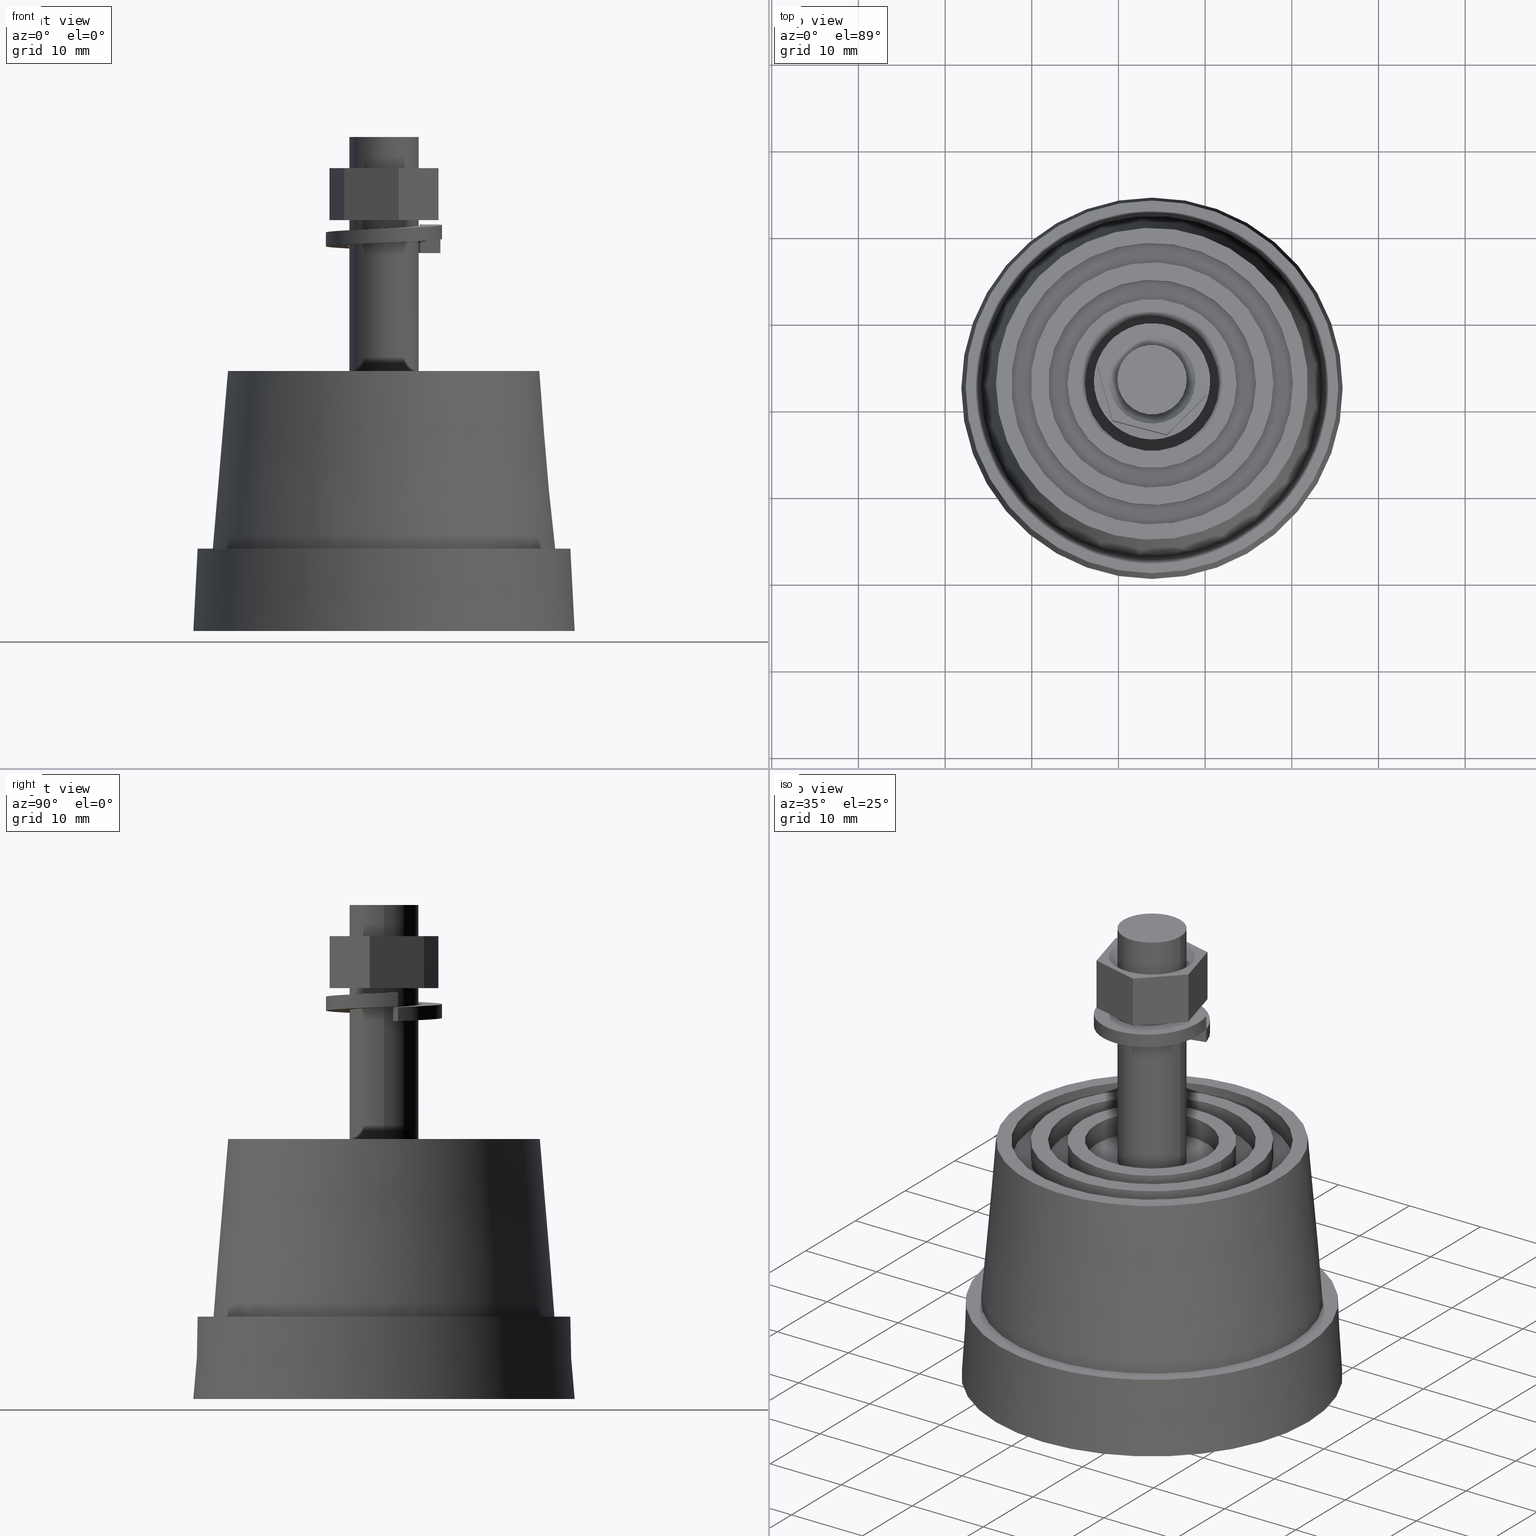
[diagram: canonical four-view strip — front | top / right | iso, engineering-drawing reading convention]
A machine part, canonical four-view strip (front | top / right | iso — engineering-drawing reading convention). The complete STEP part file that produces these views, byte-faithful:
ISO-10303-21;
HEADER;
/* Generated by software containing ST-Developer
 * from STEP Tools, Inc. (www.steptools.com) 
 */

FILE_DESCRIPTION(
/* description */ (''),
/* implementation_level */ '2;1');

FILE_NAME(
/* name */ '\\\\SYNOLOGYNAS\\web\\db2\\PRM8-5\\\X2\B3C4BA74\X0\\\PRM8-
5.stp',
/* time_stamp */ '2023-05-08T14:34:36+09:00',
/* author */ ('user'),
/* organization */ (''),
/* preprocessor_version */ 'ST-DEVELOPER v15.6',
/* originating_system */ 'Autodesk Inventor 2015',
/* authorisation */ '');

FILE_SCHEMA (('AUTOMOTIVE_DESIGN { 1 0 10303 214 3 1 1 }'));
ENDSEC;

DATA;
#10=MECHANICAL_DESIGN_GEOMETRIC_PRESENTATION_REPRESENTATION('',(#87,#88,
#89),#1281);
#11=ITEM_DEFINED_TRANSFORMATION($,$,#656,#744);
#12=ITEM_DEFINED_TRANSFORMATION($,$,#722,#745);
#13=ITEM_DEFINED_TRANSFORMATION($,$,#738,#746);
#14=(
REPRESENTATION_RELATIONSHIP($,$,#1299,#1302)
REPRESENTATION_RELATIONSHIP_WITH_TRANSFORMATION(#11)
SHAPE_REPRESENTATION_RELATIONSHIP()
);
#15=(
REPRESENTATION_RELATIONSHIP($,$,#1300,#1302)
REPRESENTATION_RELATIONSHIP_WITH_TRANSFORMATION(#12)
SHAPE_REPRESENTATION_RELATIONSHIP()
);
#16=(
REPRESENTATION_RELATIONSHIP($,$,#1301,#1302)
REPRESENTATION_RELATIONSHIP_WITH_TRANSFORMATION(#13)
SHAPE_REPRESENTATION_RELATIONSHIP()
);
#17=CONTEXT_DEPENDENT_SHAPE_REPRESENTATION(#14,#1296);
#18=CONTEXT_DEPENDENT_SHAPE_REPRESENTATION(#15,#1297);
#19=CONTEXT_DEPENDENT_SHAPE_REPRESENTATION(#16,#1298);
#20=NEXT_ASSEMBLY_USAGE_OCCURRENCE('DR_PRM8-5:1',$,$,#1307,#1304,$);
#21=NEXT_ASSEMBLY_USAGE_OCCURRENCE('DR_PRM8-5-\X2\B108D2B8\X0\:1',$,$,#1307,
#1305,$);
#22=NEXT_ASSEMBLY_USAGE_OCCURRENCE('DR_PRM8-5-\X2\C640C154\X0\:1',$,$,#1307,
#1306,$);
#23=B_SPLINE_CURVE_WITH_KNOTS('',3,(#1156,#1157,#1158,#1159,#1160,#1161,
#1162,#1163,#1164,#1165,#1166,#1167),.UNSPECIFIED.,.F.,.F.,(4,1,1,1,1,1,
1,1,1,4),(0.,0.448798950512828,0.897597901025655,1.79519580205131,2.69279370307697,
3.59039160410262,4.48798950512828,5.38558740615393,5.83438635666676,6.28318530717959),
 .UNSPECIFIED.);
#24=B_SPLINE_CURVE_WITH_KNOTS('',3,(#1170,#1171,#1172,#1173,#1174,#1175,
#1176,#1177,#1178,#1179,#1180,#1181),.UNSPECIFIED.,.F.,.F.,(4,1,1,1,1,1,
1,1,1,4),(0.,0.448798950512828,0.897597901025655,1.79519580205131,2.69279370307697,
3.59039160410262,4.48798950512828,5.38558740615393,5.83438635666676,6.28318530717959),
 .UNSPECIFIED.);
#25=B_SPLINE_CURVE_WITH_KNOTS('',3,(#1186,#1187,#1188,#1189,#1190,#1191,
#1192,#1193,#1194,#1195,#1196,#1197),.UNSPECIFIED.,.F.,.F.,(4,1,1,1,1,1,
1,1,1,4),(0.,0.448798950512828,0.897597901025655,1.79519580205131,2.69279370307697,
3.59039160410262,4.48798950512828,5.38558740615393,5.83438635666676,6.28318530717959),
 .UNSPECIFIED.);
#26=B_SPLINE_CURVE_WITH_KNOTS('',3,(#1250,#1251,#1252,#1253,#1254,#1255,
#1256,#1257,#1258,#1259,#1260,#1261),.UNSPECIFIED.,.F.,.F.,(4,1,1,1,1,1,
1,1,1,4),(0.,0.448798950512828,0.897597901025655,1.79519580205131,2.69279370307697,
3.59039160410262,4.48798950512828,5.38558740615393,5.83438635666676,6.28318530717959),
 .UNSPECIFIED.);
#27=B_SPLINE_SURFACE_WITH_KNOTS('',3,3,((#1104,#1105,#1106,#1107,#1108,
#1109,#1110,#1111,#1112,#1113,#1114,#1115),(#1116,#1117,#1118,#1119,#1120,
#1121,#1122,#1123,#1124,#1125,#1126,#1127),(#1128,#1129,#1130,#1131,#1132,
#1133,#1134,#1135,#1136,#1137,#1138,#1139),(#1140,#1141,#1142,#1143,#1144,
#1145,#1146,#1147,#1148,#1149,#1150,#1151)),.UNSPECIFIED.,.F.,.F.,.F.,(4,
4),(4,1,1,1,1,1,1,1,1,4),(0.,0.24),(0.,0.448798950512828,0.897597901025655,
1.79519580205131,2.69279370307697,3.59039160410262,4.48798950512828,5.38558740615393,
5.83438635666676,6.28318530717959),.UNSPECIFIED.);
#28=B_SPLINE_SURFACE_WITH_KNOTS('',3,3,((#1199,#1200,#1201,#1202,#1203,
#1204,#1205,#1206,#1207,#1208,#1209,#1210),(#1211,#1212,#1213,#1214,#1215,
#1216,#1217,#1218,#1219,#1220,#1221,#1222),(#1223,#1224,#1225,#1226,#1227,
#1228,#1229,#1230,#1231,#1232,#1233,#1234),(#1235,#1236,#1237,#1238,#1239,
#1240,#1241,#1242,#1243,#1244,#1245,#1246)),.UNSPECIFIED.,.F.,.F.,.F.,(4,
4),(4,1,1,1,1,1,1,1,1,4),(0.,0.24),(0.,0.448798950512828,0.897597901025655,
1.79519580205131,2.69279370307697,3.59039160410262,4.48798950512828,5.38558740615393,
5.83438635666676,6.28318530717959),.UNSPECIFIED.);
#29=LINE('',#1065,#55);
#30=LINE('',#1067,#56);
#31=LINE('',#1069,#57);
#32=LINE('',#1071,#58);
#33=LINE('',#1073,#59);
#34=LINE('',#1074,#60);
#35=LINE('',#1081,#61);
#36=LINE('',#1083,#62);
#37=LINE('',#1085,#63);
#38=LINE('',#1087,#64);
#39=LINE('',#1089,#65);
#40=LINE('',#1090,#66);
#41=LINE('',#1092,#67);
#42=LINE('',#1093,#68);
#43=LINE('',#1095,#69);
#44=LINE('',#1097,#70);
#45=LINE('',#1099,#71);
#46=LINE('',#1101,#72);
#47=LINE('',#1154,#73);
#48=LINE('',#1169,#74);
#49=LINE('',#1184,#75);
#50=LINE('',#1198,#76);
#51=LINE('',#1248,#77);
#52=LINE('',#1262,#78);
#53=LINE('',#1264,#79);
#54=LINE('',#1265,#80);
#55=VECTOR('',#893,6.5);
#56=VECTOR('',#894,6.5);
#57=VECTOR('',#895,6.5);
#58=VECTOR('',#896,6.5);
#59=VECTOR('',#897,6.5);
#60=VECTOR('',#898,6.50000000000001);
#61=VECTOR('',#905,6.5);
#62=VECTOR('',#906,6.50000000000001);
#63=VECTOR('',#907,6.5);
#64=VECTOR('',#908,6.5);
#65=VECTOR('',#909,6.5);
#66=VECTOR('',#910,6.5);
#67=VECTOR('',#913,6.);
#68=VECTOR('',#914,6.);
#69=VECTOR('',#917,6.);
#70=VECTOR('',#920,6.);
#71=VECTOR('',#923,6.);
#72=VECTOR('',#926,6.);
#73=VECTOR('',#931,2.4);
#74=VECTOR('',#932,2.4);
#75=VECTOR('',#935,1.6);
#76=VECTOR('',#936,1.6);
#77=VECTOR('',#937,2.4);
#78=VECTOR('',#938,2.4);
#79=VECTOR('',#941,1.6);
#80=VECTOR('',#942,1.6);
#81=SHAPE_REPRESENTATION_RELATIONSHIP('SRR','None',#1299,#84);
#82=SHAPE_REPRESENTATION_RELATIONSHIP('SRR','None',#1300,#85);
#83=SHAPE_REPRESENTATION_RELATIONSHIP('SRR','None',#1301,#86);
#84=ADVANCED_BREP_SHAPE_REPRESENTATION($,(#90),#1277);
#85=ADVANCED_BREP_SHAPE_REPRESENTATION($,(#91),#1278);
#86=ADVANCED_BREP_SHAPE_REPRESENTATION($,(#92),#1279);
#87=STYLED_ITEM('',(#1323),#90);
#88=STYLED_ITEM('',(#1324),#91);
#89=STYLED_ITEM('',(#1325),#92);
#90=MANIFOLD_SOLID_BREP('\X2\C194B9ACB4DC\X0\1',#653);
#91=MANIFOLD_SOLID_BREP('\X2\C194B9ACB4DC\X0\1',#654);
#92=MANIFOLD_SOLID_BREP('\X2\C194B9ACB4DC\X0\1',#655);
#93=CONICAL_SURFACE('',#716,19.75,4.87927378300673);
#94=CONICAL_SURFACE('',#721,22.,3.01278750418336);
#95=CONICAL_SURFACE('',#723,4.5,45.);
#96=CONICAL_SURFACE('',#729,4.5,45.);
#97=PLANE('',#660);
#98=PLANE('',#661);
#99=PLANE('',#665);
#100=PLANE('',#678);
#101=PLANE('',#679);
#102=PLANE('',#680);
#103=PLANE('',#685);
#104=PLANE('',#686);
#105=PLANE('',#699);
#106=PLANE('',#700);
#107=PLANE('',#710);
#108=PLANE('',#711);
#109=PLANE('',#712);
#110=PLANE('',#713);
#111=PLANE('',#715);
#112=PLANE('',#718);
#113=PLANE('',#720);
#114=PLANE('',#728);
#115=PLANE('',#731);
#116=PLANE('',#732);
#117=PLANE('',#733);
#118=PLANE('',#734);
#119=PLANE('',#735);
#120=PLANE('',#736);
#121=PLANE('',#737);
#122=PLANE('',#741);
#123=PLANE('',#742);
#124=FACE_BOUND('',#211,.T.);
#125=FACE_BOUND('',#214,.T.);
#126=FACE_BOUND('',#216,.T.);
#127=FACE_BOUND('',#218,.T.);
#128=FACE_BOUND('',#220,.T.);
#129=FACE_BOUND('',#222,.T.);
#130=FACE_BOUND('',#224,.T.);
#131=FACE_BOUND('',#226,.T.);
#132=FACE_BOUND('',#228,.T.);
#133=FACE_BOUND('',#230,.T.);
#134=FACE_BOUND('',#232,.T.);
#135=FACE_BOUND('',#234,.T.);
#136=FACE_BOUND('',#237,.T.);
#137=FACE_BOUND('',#239,.T.);
#138=FACE_BOUND('',#241,.T.);
#139=FACE_BOUND('',#243,.T.);
#140=FACE_BOUND('',#245,.T.);
#141=FACE_BOUND('',#247,.T.);
#142=FACE_BOUND('',#249,.T.);
#143=FACE_BOUND('',#251,.T.);
#144=FACE_BOUND('',#253,.T.);
#145=FACE_BOUND('',#255,.T.);
#146=FACE_BOUND('',#257,.T.);
#147=FACE_BOUND('',#259,.T.);
#148=FACE_BOUND('',#261,.T.);
#149=FACE_BOUND('',#263,.T.);
#150=FACE_BOUND('',#265,.T.);
#151=FACE_BOUND('',#267,.T.);
#152=FACE_BOUND('',#269,.T.);
#153=FACE_BOUND('',#271,.T.);
#154=FACE_BOUND('',#273,.T.);
#155=FACE_BOUND('',#275,.T.);
#156=FACE_BOUND('',#277,.T.);
#157=FACE_BOUND('',#279,.T.);
#158=FACE_BOUND('',#281,.T.);
#159=FACE_BOUND('',#283,.T.);
#160=FACE_OUTER_BOUND('',#210,.T.);
#161=FACE_OUTER_BOUND('',#212,.T.);
#162=FACE_OUTER_BOUND('',#213,.T.);
#163=FACE_OUTER_BOUND('',#215,.T.);
#164=FACE_OUTER_BOUND('',#217,.T.);
#165=FACE_OUTER_BOUND('',#219,.T.);
#166=FACE_OUTER_BOUND('',#221,.T.);
#167=FACE_OUTER_BOUND('',#223,.T.);
#168=FACE_OUTER_BOUND('',#225,.T.);
#169=FACE_OUTER_BOUND('',#227,.T.);
#170=FACE_OUTER_BOUND('',#229,.T.);
#171=FACE_OUTER_BOUND('',#231,.T.);
#172=FACE_OUTER_BOUND('',#233,.T.);
#173=FACE_OUTER_BOUND('',#235,.T.);
#174=FACE_OUTER_BOUND('',#236,.T.);
#175=FACE_OUTER_BOUND('',#238,.T.);
#176=FACE_OUTER_BOUND('',#240,.T.);
#177=FACE_OUTER_BOUND('',#242,.T.);
#178=FACE_OUTER_BOUND('',#244,.T.);
#179=FACE_OUTER_BOUND('',#246,.T.);
#180=FACE_OUTER_BOUND('',#248,.T.);
#181=FACE_OUTER_BOUND('',#250,.T.);
#182=FACE_OUTER_BOUND('',#252,.T.);
#183=FACE_OUTER_BOUND('',#254,.T.);
#184=FACE_OUTER_BOUND('',#256,.T.);
#185=FACE_OUTER_BOUND('',#258,.T.);
#186=FACE_OUTER_BOUND('',#260,.T.);
#187=FACE_OUTER_BOUND('',#262,.T.);
#188=FACE_OUTER_BOUND('',#264,.T.);
#189=FACE_OUTER_BOUND('',#266,.T.);
#190=FACE_OUTER_BOUND('',#268,.T.);
#191=FACE_OUTER_BOUND('',#270,.T.);
#192=FACE_OUTER_BOUND('',#272,.T.);
#193=FACE_OUTER_BOUND('',#274,.T.);
#194=FACE_OUTER_BOUND('',#276,.T.);
#195=FACE_OUTER_BOUND('',#278,.T.);
#196=FACE_OUTER_BOUND('',#280,.T.);
#197=FACE_OUTER_BOUND('',#282,.T.);
#198=FACE_OUTER_BOUND('',#284,.T.);
#199=FACE_OUTER_BOUND('',#285,.T.);
#200=FACE_OUTER_BOUND('',#286,.T.);
#201=FACE_OUTER_BOUND('',#287,.T.);
#202=FACE_OUTER_BOUND('',#288,.T.);
#203=FACE_OUTER_BOUND('',#289,.T.);
#204=FACE_OUTER_BOUND('',#290,.T.);
#205=FACE_OUTER_BOUND('',#291,.T.);
#206=FACE_OUTER_BOUND('',#292,.T.);
#207=FACE_OUTER_BOUND('',#293,.T.);
#208=FACE_OUTER_BOUND('',#294,.T.);
#209=FACE_OUTER_BOUND('',#295,.T.);
#210=EDGE_LOOP('',(#454));
#211=EDGE_LOOP('',(#455));
#212=EDGE_LOOP('',(#456));
#213=EDGE_LOOP('',(#457));
#214=EDGE_LOOP('',(#458));
#215=EDGE_LOOP('',(#459));
#216=EDGE_LOOP('',(#460));
#217=EDGE_LOOP('',(#461));
#218=EDGE_LOOP('',(#462));
#219=EDGE_LOOP('',(#463));
#220=EDGE_LOOP('',(#464));
#221=EDGE_LOOP('',(#465));
#222=EDGE_LOOP('',(#466));
#223=EDGE_LOOP('',(#467));
#224=EDGE_LOOP('',(#468));
#225=EDGE_LOOP('',(#469));
#226=EDGE_LOOP('',(#470));
#227=EDGE_LOOP('',(#471));
#228=EDGE_LOOP('',(#472));
#229=EDGE_LOOP('',(#473));
#230=EDGE_LOOP('',(#474));
#231=EDGE_LOOP('',(#475));
#232=EDGE_LOOP('',(#476));
#233=EDGE_LOOP('',(#477));
#234=EDGE_LOOP('',(#478));
#235=EDGE_LOOP('',(#479));
#236=EDGE_LOOP('',(#480));
#237=EDGE_LOOP('',(#481));
#238=EDGE_LOOP('',(#482));
#239=EDGE_LOOP('',(#483));
#240=EDGE_LOOP('',(#484));
#241=EDGE_LOOP('',(#485));
#242=EDGE_LOOP('',(#486));
#243=EDGE_LOOP('',(#487));
#244=EDGE_LOOP('',(#488));
#245=EDGE_LOOP('',(#489));
#246=EDGE_LOOP('',(#490));
#247=EDGE_LOOP('',(#491));
#248=EDGE_LOOP('',(#492));
#249=EDGE_LOOP('',(#493));
#250=EDGE_LOOP('',(#494));
#251=EDGE_LOOP('',(#495));
#252=EDGE_LOOP('',(#496));
#253=EDGE_LOOP('',(#497));
#254=EDGE_LOOP('',(#498));
#255=EDGE_LOOP('',(#499));
#256=EDGE_LOOP('',(#500));
#257=EDGE_LOOP('',(#501));
#258=EDGE_LOOP('',(#502));
#259=EDGE_LOOP('',(#503));
#260=EDGE_LOOP('',(#504));
#261=EDGE_LOOP('',(#505));
#262=EDGE_LOOP('',(#506));
#263=EDGE_LOOP('',(#507));
#264=EDGE_LOOP('',(#508));
#265=EDGE_LOOP('',(#509));
#266=EDGE_LOOP('',(#510));
#267=EDGE_LOOP('',(#511));
#268=EDGE_LOOP('',(#512));
#269=EDGE_LOOP('',(#513));
#270=EDGE_LOOP('',(#514));
#271=EDGE_LOOP('',(#515));
#272=EDGE_LOOP('',(#516));
#273=EDGE_LOOP('',(#517));
#274=EDGE_LOOP('',(#518));
#275=EDGE_LOOP('',(#519));
#276=EDGE_LOOP('',(#520));
#277=EDGE_LOOP('',(#521));
#278=EDGE_LOOP('',(#522,#523,#524,#525,#526,#527));
#279=EDGE_LOOP('',(#528));
#280=EDGE_LOOP('',(#529));
#281=EDGE_LOOP('',(#530));
#282=EDGE_LOOP('',(#531,#532,#533,#534,#535,#536));
#283=EDGE_LOOP('',(#537));
#284=EDGE_LOOP('',(#538,#539,#540,#541));
#285=EDGE_LOOP('',(#542,#543,#544,#545));
#286=EDGE_LOOP('',(#546,#547,#548,#549));
#287=EDGE_LOOP('',(#550,#551,#552,#553));
#288=EDGE_LOOP('',(#554,#555,#556,#557));
#289=EDGE_LOOP('',(#558,#559,#560,#561));
#290=EDGE_LOOP('',(#562,#563,#564,#565));
#291=EDGE_LOOP('',(#566,#567,#568,#569));
#292=EDGE_LOOP('',(#570,#571,#572,#573));
#293=EDGE_LOOP('',(#574,#575,#576,#577));
#294=EDGE_LOOP('',(#578,#579,#580,#581));
#295=EDGE_LOOP('',(#582,#583,#584,#585));
#296=CIRCLE('',#658,4.);
#297=CIRCLE('',#659,4.);
#298=CIRCLE('',#662,7.75);
#299=CIRCLE('',#664,7.75);
#300=CIRCLE('',#666,12.);
#301=CIRCLE('',#667,9.75);
#302=CIRCLE('',#669,9.75);
#303=CIRCLE('',#671,12.);
#304=CIRCLE('',#673,16.25);
#305=CIRCLE('',#674,16.25);
#306=CIRCLE('',#676,14.);
#307=CIRCLE('',#677,14.);
#308=CIRCLE('',#681,18.);
#309=CIRCLE('',#683,6.25);
#310=CIRCLE('',#684,6.25);
#311=CIRCLE('',#687,20.25);
#312=CIRCLE('',#688,18.);
#313=CIRCLE('',#690,18.);
#314=CIRCLE('',#692,20.25);
#315=CIRCLE('',#694,11.5);
#316=CIRCLE('',#695,11.5);
#317=CIRCLE('',#697,9.75);
#318=CIRCLE('',#698,9.75);
#319=CIRCLE('',#701,16.);
#320=CIRCLE('',#702,13.75);
#321=CIRCLE('',#704,13.75);
#322=CIRCLE('',#706,16.);
#323=CIRCLE('',#708,7.5);
#324=CIRCLE('',#709,7.5);
#325=CIRCLE('',#714,22.);
#326=CIRCLE('',#717,19.75);
#327=CIRCLE('',#719,21.5);
#328=CIRCLE('',#724,4.);
#329=CIRCLE('',#725,5.);
#330=CIRCLE('',#727,4.);
#331=CIRCLE('',#730,5.);
#332=VERTEX_POINT('',#957);
#333=VERTEX_POINT('',#959);
#334=VERTEX_POINT('',#963);
#335=VERTEX_POINT('',#966);
#336=VERTEX_POINT('',#969);
#337=VERTEX_POINT('',#971);
#338=VERTEX_POINT('',#974);
#339=VERTEX_POINT('',#977);
#340=VERTEX_POINT('',#980);
#341=VERTEX_POINT('',#982);
#342=VERTEX_POINT('',#985);
#343=VERTEX_POINT('',#987);
#344=VERTEX_POINT('',#992);
#345=VERTEX_POINT('',#995);
#346=VERTEX_POINT('',#997);
#347=VERTEX_POINT('',#1001);
#348=VERTEX_POINT('',#1003);
#349=VERTEX_POINT('',#1006);
#350=VERTEX_POINT('',#1009);
#351=VERTEX_POINT('',#1012);
#352=VERTEX_POINT('',#1014);
#353=VERTEX_POINT('',#1017);
#354=VERTEX_POINT('',#1019);
#355=VERTEX_POINT('',#1023);
#356=VERTEX_POINT('',#1025);
#357=VERTEX_POINT('',#1028);
#358=VERTEX_POINT('',#1031);
#359=VERTEX_POINT('',#1034);
#360=VERTEX_POINT('',#1036);
#361=VERTEX_POINT('',#1042);
#362=VERTEX_POINT('',#1046);
#363=VERTEX_POINT('',#1049);
#364=VERTEX_POINT('',#1055);
#365=VERTEX_POINT('',#1057);
#366=VERTEX_POINT('',#1060);
#367=VERTEX_POINT('',#1063);
#368=VERTEX_POINT('',#1064);
#369=VERTEX_POINT('',#1066);
#370=VERTEX_POINT('',#1068);
#371=VERTEX_POINT('',#1070);
#372=VERTEX_POINT('',#1072);
#373=VERTEX_POINT('',#1076);
#374=VERTEX_POINT('',#1079);
#375=VERTEX_POINT('',#1080);
#376=VERTEX_POINT('',#1082);
#377=VERTEX_POINT('',#1084);
#378=VERTEX_POINT('',#1086);
#379=VERTEX_POINT('',#1088);
#380=VERTEX_POINT('',#1152);
#381=VERTEX_POINT('',#1153);
#382=VERTEX_POINT('',#1155);
#383=VERTEX_POINT('',#1168);
#384=VERTEX_POINT('',#1183);
#385=VERTEX_POINT('',#1185);
#386=VERTEX_POINT('',#1247);
#387=VERTEX_POINT('',#1249);
#388=EDGE_CURVE('',#332,#332,#296,.T.);
#389=EDGE_CURVE('',#333,#333,#297,.T.);
#390=EDGE_CURVE('',#334,#334,#298,.T.);
#391=EDGE_CURVE('',#335,#335,#299,.T.);
#392=EDGE_CURVE('',#336,#336,#300,.T.);
#393=EDGE_CURVE('',#337,#337,#301,.T.);
#394=EDGE_CURVE('',#338,#338,#302,.T.);
#395=EDGE_CURVE('',#339,#339,#303,.T.);
#396=EDGE_CURVE('',#340,#340,#304,.T.);
#397=EDGE_CURVE('',#341,#341,#305,.T.);
#398=EDGE_CURVE('',#342,#342,#306,.T.);
#399=EDGE_CURVE('',#343,#343,#307,.T.);
#400=EDGE_CURVE('',#344,#344,#308,.T.);
#401=EDGE_CURVE('',#345,#345,#309,.T.);
#402=EDGE_CURVE('',#346,#346,#310,.T.);
#403=EDGE_CURVE('',#347,#347,#311,.T.);
#404=EDGE_CURVE('',#348,#348,#312,.T.);
#405=EDGE_CURVE('',#349,#349,#313,.T.);
#406=EDGE_CURVE('',#350,#350,#314,.T.);
#407=EDGE_CURVE('',#351,#351,#315,.T.);
#408=EDGE_CURVE('',#352,#352,#316,.T.);
#409=EDGE_CURVE('',#353,#353,#317,.T.);
#410=EDGE_CURVE('',#354,#354,#318,.T.);
#411=EDGE_CURVE('',#355,#355,#319,.T.);
#412=EDGE_CURVE('',#356,#356,#320,.T.);
#413=EDGE_CURVE('',#357,#357,#321,.T.);
#414=EDGE_CURVE('',#358,#358,#322,.T.);
#415=EDGE_CURVE('',#359,#359,#323,.T.);
#416=EDGE_CURVE('',#360,#360,#324,.T.);
#417=EDGE_CURVE('',#361,#361,#325,.T.);
#418=EDGE_CURVE('',#362,#362,#326,.T.);
#419=EDGE_CURVE('',#363,#363,#327,.T.);
#420=EDGE_CURVE('',#364,#364,#328,.T.);
#421=EDGE_CURVE('',#365,#365,#329,.T.);
#422=EDGE_CURVE('',#366,#366,#330,.T.);
#423=EDGE_CURVE('',#367,#368,#29,.T.);
#424=EDGE_CURVE('',#368,#369,#30,.T.);
#425=EDGE_CURVE('',#369,#370,#31,.T.);
#426=EDGE_CURVE('',#370,#371,#32,.T.);
#427=EDGE_CURVE('',#371,#372,#33,.T.);
#428=EDGE_CURVE('',#372,#367,#34,.T.);
#429=EDGE_CURVE('',#373,#373,#331,.T.);
#430=EDGE_CURVE('',#374,#375,#35,.T.);
#431=EDGE_CURVE('',#375,#376,#36,.T.);
#432=EDGE_CURVE('',#376,#377,#37,.T.);
#433=EDGE_CURVE('',#377,#378,#38,.T.);
#434=EDGE_CURVE('',#378,#379,#39,.T.);
#435=EDGE_CURVE('',#379,#374,#40,.T.);
#436=EDGE_CURVE('',#368,#374,#41,.T.);
#437=EDGE_CURVE('',#369,#379,#42,.T.);
#438=EDGE_CURVE('',#370,#378,#43,.T.);
#439=EDGE_CURVE('',#371,#377,#44,.T.);
#440=EDGE_CURVE('',#372,#376,#45,.T.);
#441=EDGE_CURVE('',#367,#375,#46,.T.);
#442=EDGE_CURVE('',#380,#381,#47,.T.);
#443=EDGE_CURVE('',#382,#381,#23,.T.);
#444=EDGE_CURVE('',#383,#382,#48,.T.);
#445=EDGE_CURVE('',#383,#380,#24,.T.);
#446=EDGE_CURVE('',#381,#384,#49,.T.);
#447=EDGE_CURVE('',#385,#384,#25,.T.);
#448=EDGE_CURVE('',#382,#385,#50,.T.);
#449=EDGE_CURVE('',#384,#386,#51,.T.);
#450=EDGE_CURVE('',#387,#386,#26,.T.);
#451=EDGE_CURVE('',#385,#387,#52,.T.);
#452=EDGE_CURVE('',#386,#380,#53,.T.);
#453=EDGE_CURVE('',#387,#383,#54,.T.);
#454=ORIENTED_EDGE('',*,*,#388,.F.);
#455=ORIENTED_EDGE('',*,*,#389,.F.);
#456=ORIENTED_EDGE('',*,*,#388,.T.);
#457=ORIENTED_EDGE('',*,*,#390,.F.);
#458=ORIENTED_EDGE('',*,*,#389,.T.);
#459=ORIENTED_EDGE('',*,*,#391,.F.);
#460=ORIENTED_EDGE('',*,*,#390,.T.);
#461=ORIENTED_EDGE('',*,*,#392,.F.);
#462=ORIENTED_EDGE('',*,*,#393,.F.);
#463=ORIENTED_EDGE('',*,*,#394,.F.);
#464=ORIENTED_EDGE('',*,*,#393,.T.);
#465=ORIENTED_EDGE('',*,*,#395,.F.);
#466=ORIENTED_EDGE('',*,*,#392,.T.);
#467=ORIENTED_EDGE('',*,*,#396,.F.);
#468=ORIENTED_EDGE('',*,*,#397,.T.);
#469=ORIENTED_EDGE('',*,*,#398,.F.);
#470=ORIENTED_EDGE('',*,*,#399,.T.);
#471=ORIENTED_EDGE('',*,*,#397,.F.);
#472=ORIENTED_EDGE('',*,*,#399,.F.);
#473=ORIENTED_EDGE('',*,*,#398,.T.);
#474=ORIENTED_EDGE('',*,*,#395,.T.);
#475=ORIENTED_EDGE('',*,*,#400,.F.);
#476=ORIENTED_EDGE('',*,*,#396,.T.);
#477=ORIENTED_EDGE('',*,*,#401,.T.);
#478=ORIENTED_EDGE('',*,*,#402,.T.);
#479=ORIENTED_EDGE('',*,*,#402,.F.);
#480=ORIENTED_EDGE('',*,*,#403,.F.);
#481=ORIENTED_EDGE('',*,*,#404,.F.);
#482=ORIENTED_EDGE('',*,*,#405,.F.);
#483=ORIENTED_EDGE('',*,*,#404,.T.);
#484=ORIENTED_EDGE('',*,*,#406,.F.);
#485=ORIENTED_EDGE('',*,*,#403,.T.);
#486=ORIENTED_EDGE('',*,*,#407,.F.);
#487=ORIENTED_EDGE('',*,*,#408,.T.);
#488=ORIENTED_EDGE('',*,*,#409,.F.);
#489=ORIENTED_EDGE('',*,*,#410,.T.);
#490=ORIENTED_EDGE('',*,*,#408,.F.);
#491=ORIENTED_EDGE('',*,*,#410,.F.);
#492=ORIENTED_EDGE('',*,*,#411,.F.);
#493=ORIENTED_EDGE('',*,*,#412,.F.);
#494=ORIENTED_EDGE('',*,*,#413,.F.);
#495=ORIENTED_EDGE('',*,*,#412,.T.);
#496=ORIENTED_EDGE('',*,*,#414,.F.);
#497=ORIENTED_EDGE('',*,*,#411,.T.);
#498=ORIENTED_EDGE('',*,*,#415,.F.);
#499=ORIENTED_EDGE('',*,*,#416,.T.);
#500=ORIENTED_EDGE('',*,*,#416,.F.);
#501=ORIENTED_EDGE('',*,*,#401,.F.);
#502=ORIENTED_EDGE('',*,*,#405,.T.);
#503=ORIENTED_EDGE('',*,*,#414,.T.);
#504=ORIENTED_EDGE('',*,*,#409,.T.);
#505=ORIENTED_EDGE('',*,*,#415,.T.);
#506=ORIENTED_EDGE('',*,*,#417,.F.);
#507=ORIENTED_EDGE('',*,*,#406,.T.);
#508=ORIENTED_EDGE('',*,*,#394,.T.);
#509=ORIENTED_EDGE('',*,*,#391,.T.);
#510=ORIENTED_EDGE('',*,*,#400,.T.);
#511=ORIENTED_EDGE('',*,*,#418,.F.);
#512=ORIENTED_EDGE('',*,*,#419,.F.);
#513=ORIENTED_EDGE('',*,*,#418,.T.);
#514=ORIENTED_EDGE('',*,*,#413,.T.);
#515=ORIENTED_EDGE('',*,*,#407,.T.);
#516=ORIENTED_EDGE('',*,*,#417,.T.);
#517=ORIENTED_EDGE('',*,*,#419,.T.);
#518=ORIENTED_EDGE('',*,*,#420,.T.);
#519=ORIENTED_EDGE('',*,*,#421,.T.);
#520=ORIENTED_EDGE('',*,*,#422,.F.);
#521=ORIENTED_EDGE('',*,*,#420,.F.);
#522=ORIENTED_EDGE('',*,*,#423,.T.);
#523=ORIENTED_EDGE('',*,*,#424,.T.);
#524=ORIENTED_EDGE('',*,*,#425,.T.);
#525=ORIENTED_EDGE('',*,*,#426,.T.);
#526=ORIENTED_EDGE('',*,*,#427,.T.);
#527=ORIENTED_EDGE('',*,*,#428,.T.);
#528=ORIENTED_EDGE('',*,*,#421,.F.);
#529=ORIENTED_EDGE('',*,*,#422,.T.);
#530=ORIENTED_EDGE('',*,*,#429,.T.);
#531=ORIENTED_EDGE('',*,*,#430,.T.);
#532=ORIENTED_EDGE('',*,*,#431,.T.);
#533=ORIENTED_EDGE('',*,*,#432,.T.);
#534=ORIENTED_EDGE('',*,*,#433,.T.);
#535=ORIENTED_EDGE('',*,*,#434,.T.);
#536=ORIENTED_EDGE('',*,*,#435,.T.);
#537=ORIENTED_EDGE('',*,*,#429,.F.);
#538=ORIENTED_EDGE('',*,*,#424,.F.);
#539=ORIENTED_EDGE('',*,*,#436,.T.);
#540=ORIENTED_EDGE('',*,*,#435,.F.);
#541=ORIENTED_EDGE('',*,*,#437,.F.);
#542=ORIENTED_EDGE('',*,*,#425,.F.);
#543=ORIENTED_EDGE('',*,*,#437,.T.);
#544=ORIENTED_EDGE('',*,*,#434,.F.);
#545=ORIENTED_EDGE('',*,*,#438,.F.);
#546=ORIENTED_EDGE('',*,*,#426,.F.);
#547=ORIENTED_EDGE('',*,*,#438,.T.);
#548=ORIENTED_EDGE('',*,*,#433,.F.);
#549=ORIENTED_EDGE('',*,*,#439,.F.);
#550=ORIENTED_EDGE('',*,*,#427,.F.);
#551=ORIENTED_EDGE('',*,*,#439,.T.);
#552=ORIENTED_EDGE('',*,*,#432,.F.);
#553=ORIENTED_EDGE('',*,*,#440,.F.);
#554=ORIENTED_EDGE('',*,*,#428,.F.);
#555=ORIENTED_EDGE('',*,*,#440,.T.);
#556=ORIENTED_EDGE('',*,*,#431,.F.);
#557=ORIENTED_EDGE('',*,*,#441,.F.);
#558=ORIENTED_EDGE('',*,*,#423,.F.);
#559=ORIENTED_EDGE('',*,*,#441,.T.);
#560=ORIENTED_EDGE('',*,*,#430,.F.);
#561=ORIENTED_EDGE('',*,*,#436,.F.);
#562=ORIENTED_EDGE('',*,*,#442,.T.);
#563=ORIENTED_EDGE('',*,*,#443,.F.);
#564=ORIENTED_EDGE('',*,*,#444,.F.);
#565=ORIENTED_EDGE('',*,*,#445,.T.);
#566=ORIENTED_EDGE('',*,*,#446,.T.);
#567=ORIENTED_EDGE('',*,*,#447,.F.);
#568=ORIENTED_EDGE('',*,*,#448,.F.);
#569=ORIENTED_EDGE('',*,*,#443,.T.);
#570=ORIENTED_EDGE('',*,*,#449,.T.);
#571=ORIENTED_EDGE('',*,*,#450,.F.);
#572=ORIENTED_EDGE('',*,*,#451,.F.);
#573=ORIENTED_EDGE('',*,*,#447,.T.);
#574=ORIENTED_EDGE('',*,*,#452,.T.);
#575=ORIENTED_EDGE('',*,*,#445,.F.);
#576=ORIENTED_EDGE('',*,*,#453,.F.);
#577=ORIENTED_EDGE('',*,*,#450,.T.);
#578=ORIENTED_EDGE('',*,*,#442,.F.);
#579=ORIENTED_EDGE('',*,*,#452,.F.);
#580=ORIENTED_EDGE('',*,*,#449,.F.);
#581=ORIENTED_EDGE('',*,*,#446,.F.);
#582=ORIENTED_EDGE('',*,*,#453,.T.);
#583=ORIENTED_EDGE('',*,*,#444,.T.);
#584=ORIENTED_EDGE('',*,*,#448,.T.);
#585=ORIENTED_EDGE('',*,*,#451,.T.);
#586=CYLINDRICAL_SURFACE('',#657,4.);
#587=CYLINDRICAL_SURFACE('',#663,7.75);
#588=CYLINDRICAL_SURFACE('',#668,9.75);
#589=CYLINDRICAL_SURFACE('',#670,12.);
#590=CYLINDRICAL_SURFACE('',#672,16.25);
#591=CYLINDRICAL_SURFACE('',#675,14.);
#592=CYLINDRICAL_SURFACE('',#682,6.25);
#593=CYLINDRICAL_SURFACE('',#689,18.);
#594=CYLINDRICAL_SURFACE('',#691,20.25);
#595=CYLINDRICAL_SURFACE('',#693,11.5);
#596=CYLINDRICAL_SURFACE('',#696,9.75);
#597=CYLINDRICAL_SURFACE('',#703,13.75);
#598=CYLINDRICAL_SURFACE('',#705,16.);
#599=CYLINDRICAL_SURFACE('',#707,7.5);
#600=CYLINDRICAL_SURFACE('',#726,4.);
#601=CYLINDRICAL_SURFACE('',#739,6.7);
#602=CYLINDRICAL_SURFACE('',#740,4.3);
#603=ADVANCED_FACE('',(#160,#124),#586,.T.);
#604=ADVANCED_FACE('',(#161),#97,.T.);
#605=ADVANCED_FACE('',(#162,#125),#98,.F.);
#606=ADVANCED_FACE('',(#163,#126),#587,.F.);
#607=ADVANCED_FACE('',(#164,#127),#99,.F.);
#608=ADVANCED_FACE('',(#165,#128),#588,.T.);
#609=ADVANCED_FACE('',(#166,#129),#589,.F.);
#610=ADVANCED_FACE('',(#167,#130),#590,.F.);
#611=ADVANCED_FACE('',(#168,#131),#591,.T.);
#612=ADVANCED_FACE('',(#169,#132),#100,.F.);
#613=ADVANCED_FACE('',(#170,#133),#101,.F.);
#614=ADVANCED_FACE('',(#171,#134),#102,.F.);
#615=ADVANCED_FACE('',(#172,#135),#592,.F.);
#616=ADVANCED_FACE('',(#173),#103,.F.);
#617=ADVANCED_FACE('',(#174,#136),#104,.F.);
#618=ADVANCED_FACE('',(#175,#137),#593,.T.);
#619=ADVANCED_FACE('',(#176,#138),#594,.F.);
#620=ADVANCED_FACE('',(#177,#139),#595,.F.);
#621=ADVANCED_FACE('',(#178,#140),#596,.T.);
#622=ADVANCED_FACE('',(#179,#141),#105,.F.);
#623=ADVANCED_FACE('',(#180,#142),#106,.F.);
#624=ADVANCED_FACE('',(#181,#143),#597,.T.);
#625=ADVANCED_FACE('',(#182,#144),#598,.F.);
#626=ADVANCED_FACE('',(#183,#145),#599,.F.);
#627=ADVANCED_FACE('',(#184,#146),#107,.F.);
#628=ADVANCED_FACE('',(#185,#147),#108,.F.);
#629=ADVANCED_FACE('',(#186,#148),#109,.F.);
#630=ADVANCED_FACE('',(#187,#149),#110,.F.);
#631=ADVANCED_FACE('',(#188,#150),#111,.F.);
#632=ADVANCED_FACE('',(#189,#151),#93,.T.);
#633=ADVANCED_FACE('',(#190,#152),#112,.F.);
#634=ADVANCED_FACE('',(#191,#153),#113,.F.);
#635=ADVANCED_FACE('',(#192,#154),#94,.T.);
#636=ADVANCED_FACE('',(#193,#155),#95,.F.);
#637=ADVANCED_FACE('',(#194,#156),#600,.F.);
#638=ADVANCED_FACE('',(#195,#157),#114,.T.);
#639=ADVANCED_FACE('',(#196,#158),#96,.F.);
#640=ADVANCED_FACE('',(#197,#159),#115,.F.);
#641=ADVANCED_FACE('',(#198),#116,.T.);
#642=ADVANCED_FACE('',(#199),#117,.T.);
#643=ADVANCED_FACE('',(#200),#118,.T.);
#644=ADVANCED_FACE('',(#201),#119,.T.);
#645=ADVANCED_FACE('',(#202),#120,.T.);
#646=ADVANCED_FACE('',(#203),#121,.T.);
#647=ADVANCED_FACE('',(#204),#27,.T.);
#648=ADVANCED_FACE('',(#205),#601,.T.);
#649=ADVANCED_FACE('',(#206),#28,.T.);
#650=ADVANCED_FACE('',(#207),#602,.F.);
#651=ADVANCED_FACE('',(#208),#122,.T.);
#652=ADVANCED_FACE('',(#209),#123,.F.);
#653=CLOSED_SHELL('',(#603,#604,#605,#606,#607,#608,#609,#610,#611,#612,
#613,#614,#615,#616,#617,#618,#619,#620,#621,#622,#623,#624,#625,#626,#627,
#628,#629,#630,#631,#632,#633,#634,#635));
#654=CLOSED_SHELL('',(#636,#637,#638,#639,#640,#641,#642,#643,#644,#645,
#646));
#655=CLOSED_SHELL('',(#647,#648,#649,#650,#651,#652));
#656=AXIS2_PLACEMENT_3D('placement',#955,#747,#748);
#657=AXIS2_PLACEMENT_3D('',#956,#749,#750);
#658=AXIS2_PLACEMENT_3D('',#958,#751,#752);
#659=AXIS2_PLACEMENT_3D('',#960,#753,#754);
#660=AXIS2_PLACEMENT_3D('',#961,#755,#756);
#661=AXIS2_PLACEMENT_3D('',#962,#757,#758);
#662=AXIS2_PLACEMENT_3D('',#964,#759,#760);
#663=AXIS2_PLACEMENT_3D('',#965,#761,#762);
#664=AXIS2_PLACEMENT_3D('',#967,#763,#764);
#665=AXIS2_PLACEMENT_3D('',#968,#765,#766);
#666=AXIS2_PLACEMENT_3D('',#970,#767,#768);
#667=AXIS2_PLACEMENT_3D('',#972,#769,#770);
#668=AXIS2_PLACEMENT_3D('',#973,#771,#772);
#669=AXIS2_PLACEMENT_3D('',#975,#773,#774);
#670=AXIS2_PLACEMENT_3D('',#976,#775,#776);
#671=AXIS2_PLACEMENT_3D('',#978,#777,#778);
#672=AXIS2_PLACEMENT_3D('',#979,#779,#780);
#673=AXIS2_PLACEMENT_3D('',#981,#781,#782);
#674=AXIS2_PLACEMENT_3D('',#983,#783,#784);
#675=AXIS2_PLACEMENT_3D('',#984,#785,#786);
#676=AXIS2_PLACEMENT_3D('',#986,#787,#788);
#677=AXIS2_PLACEMENT_3D('',#988,#789,#790);
#678=AXIS2_PLACEMENT_3D('',#989,#791,#792);
#679=AXIS2_PLACEMENT_3D('',#990,#793,#794);
#680=AXIS2_PLACEMENT_3D('',#991,#795,#796);
#681=AXIS2_PLACEMENT_3D('',#993,#797,#798);
#682=AXIS2_PLACEMENT_3D('',#994,#799,#800);
#683=AXIS2_PLACEMENT_3D('',#996,#801,#802);
#684=AXIS2_PLACEMENT_3D('',#998,#803,#804);
#685=AXIS2_PLACEMENT_3D('',#999,#805,#806);
#686=AXIS2_PLACEMENT_3D('',#1000,#807,#808);
#687=AXIS2_PLACEMENT_3D('',#1002,#809,#810);
#688=AXIS2_PLACEMENT_3D('',#1004,#811,#812);
#689=AXIS2_PLACEMENT_3D('',#1005,#813,#814);
#690=AXIS2_PLACEMENT_3D('',#1007,#815,#816);
#691=AXIS2_PLACEMENT_3D('',#1008,#817,#818);
#692=AXIS2_PLACEMENT_3D('',#1010,#819,#820);
#693=AXIS2_PLACEMENT_3D('',#1011,#821,#822);
#694=AXIS2_PLACEMENT_3D('',#1013,#823,#824);
#695=AXIS2_PLACEMENT_3D('',#1015,#825,#826);
#696=AXIS2_PLACEMENT_3D('',#1016,#827,#828);
#697=AXIS2_PLACEMENT_3D('',#1018,#829,#830);
#698=AXIS2_PLACEMENT_3D('',#1020,#831,#832);
#699=AXIS2_PLACEMENT_3D('',#1021,#833,#834);
#700=AXIS2_PLACEMENT_3D('',#1022,#835,#836);
#701=AXIS2_PLACEMENT_3D('',#1024,#837,#838);
#702=AXIS2_PLACEMENT_3D('',#1026,#839,#840);
#703=AXIS2_PLACEMENT_3D('',#1027,#841,#842);
#704=AXIS2_PLACEMENT_3D('',#1029,#843,#844);
#705=AXIS2_PLACEMENT_3D('',#1030,#845,#846);
#706=AXIS2_PLACEMENT_3D('',#1032,#847,#848);
#707=AXIS2_PLACEMENT_3D('',#1033,#849,#850);
#708=AXIS2_PLACEMENT_3D('',#1035,#851,#852);
#709=AXIS2_PLACEMENT_3D('',#1037,#853,#854);
#710=AXIS2_PLACEMENT_3D('',#1038,#855,#856);
#711=AXIS2_PLACEMENT_3D('',#1039,#857,#858);
#712=AXIS2_PLACEMENT_3D('',#1040,#859,#860);
#713=AXIS2_PLACEMENT_3D('',#1041,#861,#862);
#714=AXIS2_PLACEMENT_3D('',#1043,#863,#864);
#715=AXIS2_PLACEMENT_3D('',#1044,#865,#866);
#716=AXIS2_PLACEMENT_3D('',#1045,#867,#868);
#717=AXIS2_PLACEMENT_3D('',#1047,#869,#870);
#718=AXIS2_PLACEMENT_3D('',#1048,#871,#872);
#719=AXIS2_PLACEMENT_3D('',#1050,#873,#874);
#720=AXIS2_PLACEMENT_3D('',#1051,#875,#876);
#721=AXIS2_PLACEMENT_3D('',#1052,#877,#878);
#722=AXIS2_PLACEMENT_3D('placement',#1053,#879,#880);
#723=AXIS2_PLACEMENT_3D('',#1054,#881,#882);
#724=AXIS2_PLACEMENT_3D('',#1056,#883,#884);
#725=AXIS2_PLACEMENT_3D('',#1058,#885,#886);
#726=AXIS2_PLACEMENT_3D('',#1059,#887,#888);
#727=AXIS2_PLACEMENT_3D('',#1061,#889,#890);
#728=AXIS2_PLACEMENT_3D('',#1062,#891,#892);
#729=AXIS2_PLACEMENT_3D('',#1075,#899,#900);
#730=AXIS2_PLACEMENT_3D('',#1077,#901,#902);
#731=AXIS2_PLACEMENT_3D('',#1078,#903,#904);
#732=AXIS2_PLACEMENT_3D('',#1091,#911,#912);
#733=AXIS2_PLACEMENT_3D('',#1094,#915,#916);
#734=AXIS2_PLACEMENT_3D('',#1096,#918,#919);
#735=AXIS2_PLACEMENT_3D('',#1098,#921,#922);
#736=AXIS2_PLACEMENT_3D('',#1100,#924,#925);
#737=AXIS2_PLACEMENT_3D('',#1102,#927,#928);
#738=AXIS2_PLACEMENT_3D('placement',#1103,#929,#930);
#739=AXIS2_PLACEMENT_3D('',#1182,#933,#934);
#740=AXIS2_PLACEMENT_3D('',#1263,#939,#940);
#741=AXIS2_PLACEMENT_3D('',#1266,#943,#944);
#742=AXIS2_PLACEMENT_3D('',#1267,#945,#946);
#743=AXIS2_PLACEMENT_3D('placement',#1268,#947,#948);
#744=AXIS2_PLACEMENT_3D('',#1269,#949,#950);
#745=AXIS2_PLACEMENT_3D('',#1270,#951,#952);
#746=AXIS2_PLACEMENT_3D('',#1271,#953,#954);
#747=DIRECTION('axis',(0.,0.,1.));
#748=DIRECTION('refdir',(1.,0.,0.));
#749=DIRECTION('center_axis',(0.,0.,1.));
#750=DIRECTION('ref_axis',(1.,0.,0.));
#751=DIRECTION('center_axis',(0.,0.,1.));
#752=DIRECTION('ref_axis',(1.,0.,0.));
#753=DIRECTION('center_axis',(0.,0.,-1.));
#754=DIRECTION('ref_axis',(1.,0.,0.));
#755=DIRECTION('center_axis',(0.,0.,1.));
#756=DIRECTION('ref_axis',(1.,0.,0.));
#757=DIRECTION('center_axis',(0.,0.,-1.));
#758=DIRECTION('ref_axis',(-1.,0.,0.));
#759=DIRECTION('center_axis',(0.,0.,-1.));
#760=DIRECTION('ref_axis',(-1.,0.,0.));
#761=DIRECTION('center_axis',(0.,0.,1.));
#762=DIRECTION('ref_axis',(-1.,0.,0.));
#763=DIRECTION('center_axis',(0.,0.,-1.));
#764=DIRECTION('ref_axis',(-1.,0.,0.));
#765=DIRECTION('center_axis',(0.,0.,-1.));
#766=DIRECTION('ref_axis',(-1.,0.,0.));
#767=DIRECTION('center_axis',(0.,0.,-1.));
#768=DIRECTION('ref_axis',(-1.,0.,0.));
#769=DIRECTION('center_axis',(0.,0.,1.));
#770=DIRECTION('ref_axis',(-1.,0.,0.));
#771=DIRECTION('center_axis',(0.,0.,1.));
#772=DIRECTION('ref_axis',(-1.,0.,0.));
#773=DIRECTION('center_axis',(0.,0.,1.));
#774=DIRECTION('ref_axis',(-1.,0.,0.));
#775=DIRECTION('center_axis',(0.,0.,1.));
#776=DIRECTION('ref_axis',(-1.,0.,0.));
#777=DIRECTION('center_axis',(0.,0.,-1.));
#778=DIRECTION('ref_axis',(-1.,0.,0.));
#779=DIRECTION('center_axis',(0.,0.,1.));
#780=DIRECTION('ref_axis',(-1.,0.,0.));
#781=DIRECTION('center_axis',(0.,0.,-1.));
#782=DIRECTION('ref_axis',(-1.,0.,0.));
#783=DIRECTION('center_axis',(0.,0.,-1.));
#784=DIRECTION('ref_axis',(-1.,0.,0.));
#785=DIRECTION('center_axis',(0.,0.,1.));
#786=DIRECTION('ref_axis',(-1.,0.,0.));
#787=DIRECTION('center_axis',(0.,0.,1.));
#788=DIRECTION('ref_axis',(-1.,0.,0.));
#789=DIRECTION('center_axis',(0.,0.,1.));
#790=DIRECTION('ref_axis',(-1.,0.,0.));
#791=DIRECTION('center_axis',(0.,0.,-1.));
#792=DIRECTION('ref_axis',(-1.,0.,0.));
#793=DIRECTION('center_axis',(0.,0.,-1.));
#794=DIRECTION('ref_axis',(-1.,0.,0.));
#795=DIRECTION('center_axis',(0.,0.,-1.));
#796=DIRECTION('ref_axis',(-1.,0.,0.));
#797=DIRECTION('center_axis',(0.,0.,-1.));
#798=DIRECTION('ref_axis',(-1.,0.,0.));
#799=DIRECTION('center_axis',(0.,0.,1.));
#800=DIRECTION('ref_axis',(1.,0.,0.));
#801=DIRECTION('center_axis',(0.,0.,-1.));
#802=DIRECTION('ref_axis',(1.,0.,0.));
#803=DIRECTION('center_axis',(0.,0.,1.));
#804=DIRECTION('ref_axis',(1.,0.,0.));
#805=DIRECTION('center_axis',(0.,0.,1.));
#806=DIRECTION('ref_axis',(1.,0.,0.));
#807=DIRECTION('center_axis',(0.,0.,1.));
#808=DIRECTION('ref_axis',(1.,0.,0.));
#809=DIRECTION('center_axis',(0.,0.,1.));
#810=DIRECTION('ref_axis',(1.,0.,0.));
#811=DIRECTION('center_axis',(0.,0.,-1.));
#812=DIRECTION('ref_axis',(1.,0.,0.));
#813=DIRECTION('center_axis',(0.,0.,-1.));
#814=DIRECTION('ref_axis',(1.,0.,0.));
#815=DIRECTION('center_axis',(0.,0.,-1.));
#816=DIRECTION('ref_axis',(1.,0.,0.));
#817=DIRECTION('center_axis',(0.,0.,-1.));
#818=DIRECTION('ref_axis',(1.,0.,0.));
#819=DIRECTION('center_axis',(0.,0.,1.));
#820=DIRECTION('ref_axis',(1.,0.,0.));
#821=DIRECTION('center_axis',(0.,0.,-1.));
#822=DIRECTION('ref_axis',(1.,0.,0.));
#823=DIRECTION('center_axis',(0.,0.,1.));
#824=DIRECTION('ref_axis',(1.,0.,0.));
#825=DIRECTION('center_axis',(0.,0.,1.));
#826=DIRECTION('ref_axis',(1.,0.,0.));
#827=DIRECTION('center_axis',(0.,0.,-1.));
#828=DIRECTION('ref_axis',(1.,0.,0.));
#829=DIRECTION('center_axis',(0.,0.,-1.));
#830=DIRECTION('ref_axis',(1.,0.,0.));
#831=DIRECTION('center_axis',(0.,0.,-1.));
#832=DIRECTION('ref_axis',(1.,0.,0.));
#833=DIRECTION('center_axis',(0.,0.,1.));
#834=DIRECTION('ref_axis',(1.,0.,0.));
#835=DIRECTION('center_axis',(0.,0.,1.));
#836=DIRECTION('ref_axis',(1.,0.,0.));
#837=DIRECTION('center_axis',(0.,0.,1.));
#838=DIRECTION('ref_axis',(1.,0.,0.));
#839=DIRECTION('center_axis',(0.,0.,-1.));
#840=DIRECTION('ref_axis',(1.,0.,0.));
#841=DIRECTION('center_axis',(0.,0.,-1.));
#842=DIRECTION('ref_axis',(1.,0.,0.));
#843=DIRECTION('center_axis',(0.,0.,-1.));
#844=DIRECTION('ref_axis',(1.,0.,0.));
#845=DIRECTION('center_axis',(0.,0.,-1.));
#846=DIRECTION('ref_axis',(1.,0.,0.));
#847=DIRECTION('center_axis',(0.,0.,1.));
#848=DIRECTION('ref_axis',(1.,0.,0.));
#849=DIRECTION('center_axis',(0.,0.,-1.));
#850=DIRECTION('ref_axis',(1.,0.,0.));
#851=DIRECTION('center_axis',(0.,0.,1.));
#852=DIRECTION('ref_axis',(1.,0.,0.));
#853=DIRECTION('center_axis',(0.,0.,1.));
#854=DIRECTION('ref_axis',(1.,0.,0.));
#855=DIRECTION('center_axis',(0.,0.,1.));
#856=DIRECTION('ref_axis',(1.,0.,0.));
#857=DIRECTION('center_axis',(0.,0.,1.));
#858=DIRECTION('ref_axis',(1.,0.,0.));
#859=DIRECTION('center_axis',(0.,0.,1.));
#860=DIRECTION('ref_axis',(1.,0.,0.));
#861=DIRECTION('center_axis',(0.,0.,1.));
#862=DIRECTION('ref_axis',(1.,0.,0.));
#863=DIRECTION('center_axis',(0.,0.,1.));
#864=DIRECTION('ref_axis',(-1.,0.,0.));
#865=DIRECTION('center_axis',(0.,0.,-1.));
#866=DIRECTION('ref_axis',(-1.,0.,0.));
#867=DIRECTION('center_axis',(0.,0.,-1.));
#868=DIRECTION('ref_axis',(-1.,0.,0.));
#869=DIRECTION('center_axis',(0.,0.,-1.));
#870=DIRECTION('ref_axis',(-1.,0.,0.));
#871=DIRECTION('center_axis',(0.,0.,-1.));
#872=DIRECTION('ref_axis',(-1.,0.,0.));
#873=DIRECTION('center_axis',(0.,0.,-1.));
#874=DIRECTION('ref_axis',(-1.,0.,0.));
#875=DIRECTION('center_axis',(0.,0.,1.));
#876=DIRECTION('ref_axis',(1.,0.,0.));
#877=DIRECTION('center_axis',(0.,0.,-1.));
#878=DIRECTION('ref_axis',(-1.,0.,0.));
#879=DIRECTION('axis',(0.,0.,1.));
#880=DIRECTION('refdir',(1.,0.,0.));
#881=DIRECTION('center_axis',(0.,-1.,0.));
#882=DIRECTION('ref_axis',(1.,0.,0.));
#883=DIRECTION('center_axis',(0.,1.,0.));
#884=DIRECTION('ref_axis',(1.,0.,0.));
#885=DIRECTION('center_axis',(0.,-1.,0.));
#886=DIRECTION('ref_axis',(1.,0.,0.));
#887=DIRECTION('center_axis',(0.,1.,0.));
#888=DIRECTION('ref_axis',(1.,0.,0.));
#889=DIRECTION('center_axis',(0.,-1.,0.));
#890=DIRECTION('ref_axis',(-1.,0.,0.));
#891=DIRECTION('center_axis',(0.,-1.,0.));
#892=DIRECTION('ref_axis',(0.,0.,-1.));
#893=DIRECTION('',(-0.866025403784439,0.,-0.5));
#894=DIRECTION('',(-1.70803542250024E-16,0.,-1.));
#895=DIRECTION('',(0.866025403784439,0.,-0.5));
#896=DIRECTION('',(0.866025403784439,0.,0.5));
#897=DIRECTION('',(5.12410626750072E-16,0.,1.));
#898=DIRECTION('',(-0.866025403784439,0.,0.5));
#899=DIRECTION('center_axis',(0.,1.,0.));
#900=DIRECTION('ref_axis',(-1.,0.,0.));
#901=DIRECTION('center_axis',(0.,1.,0.));
#902=DIRECTION('ref_axis',(-1.,0.,0.));
#903=DIRECTION('center_axis',(0.,-1.,0.));
#904=DIRECTION('ref_axis',(0.,0.,-1.));
#905=DIRECTION('',(0.866025403784439,0.,0.5));
#906=DIRECTION('',(0.866025403784439,0.,-0.5));
#907=DIRECTION('',(-5.12410626750072E-16,0.,-1.));
#908=DIRECTION('',(-0.866025403784439,0.,-0.5));
#909=DIRECTION('',(-0.866025403784439,0.,0.5));
#910=DIRECTION('',(1.70803542250024E-16,0.,1.));
#911=DIRECTION('center_axis',(-1.,0.,1.70803542250024E-16));
#912=DIRECTION('ref_axis',(1.77635683940025E-16,0.,1.));
#913=DIRECTION('',(0.,1.,0.));
#914=DIRECTION('',(0.,1.,0.));
#915=DIRECTION('center_axis',(-0.5,0.,-0.866025403784439));
#916=DIRECTION('ref_axis',(-0.866025403784439,0.,0.5));
#917=DIRECTION('',(0.,1.,0.));
#918=DIRECTION('center_axis',(0.5,0.,-0.866025403784439));
#919=DIRECTION('ref_axis',(-0.866025403784439,0.,-0.5));
#920=DIRECTION('',(0.,1.,0.));
#921=DIRECTION('center_axis',(1.,0.,-5.12410626750072E-16));
#922=DIRECTION('ref_axis',(-5.32907051820075E-16,0.,-1.));
#923=DIRECTION('',(0.,1.,0.));
#924=DIRECTION('center_axis',(0.5,0.,0.866025403784438));
#925=DIRECTION('ref_axis',(0.866025403784438,0.,-0.5));
#926=DIRECTION('',(0.,1.,0.));
#927=DIRECTION('center_axis',(-0.5,0.,0.866025403784439));
#928=DIRECTION('ref_axis',(0.866025403784439,0.,0.5));
#929=DIRECTION('axis',(0.,0.,1.));
#930=DIRECTION('refdir',(1.,0.,0.));
#931=DIRECTION('',(0.,-2.44929359829471E-16,-1.));
#932=DIRECTION('',(0.,0.,-1.));
#933=DIRECTION('center_axis',(1.,0.,0.));
#934=DIRECTION('ref_axis',(0.,0.,-1.));
#935=DIRECTION('',(1.,0.,0.));
#936=DIRECTION('',(1.,0.,0.));
#937=DIRECTION('',(1.73472347597681E-16,2.44929359829471E-16,1.));
#938=DIRECTION('',(1.73472347597681E-16,0.,1.));
#939=DIRECTION('center_axis',(1.,0.,0.));
#940=DIRECTION('ref_axis',(0.,0.,-1.));
#941=DIRECTION('',(-1.,0.,0.));
#942=DIRECTION('',(-1.,0.,0.));
#943=DIRECTION('center_axis',(0.,1.,-2.44929359829471E-16));
#944=DIRECTION('ref_axis',(0.,2.44929359829471E-16,1.));
#945=DIRECTION('center_axis',(0.,1.,0.));
#946=DIRECTION('ref_axis',(0.,0.,1.));
#947=DIRECTION('axis',(0.,0.,1.));
#948=DIRECTION('refdir',(1.,0.,0.));
#949=DIRECTION('',(0.,0.,1.));
#950=DIRECTION('',(1.,0.,0.));
#951=DIRECTION('',(0.704425684637782,0.709777750301172,0.));
#952=DIRECTION('',(-0.709777750301172,0.704425684637782,0.));
#953=DIRECTION('',(-0.970387878373193,-0.24155199338108,0.));
#954=DIRECTION('',(0.,0.,1.));
#955=CARTESIAN_POINT('',(0.,0.,0.));
#956=CARTESIAN_POINT('Origin',(0.,0.,27.5));
#957=CARTESIAN_POINT('',(4.,0.,57.));
#958=CARTESIAN_POINT('Origin',(0.,0.,57.));
#959=CARTESIAN_POINT('',(4.,0.,27.5));
#960=CARTESIAN_POINT('Origin',(0.,0.,27.5));
#961=CARTESIAN_POINT('Origin',(-9.8645675837472E-17,0.,57.));
#962=CARTESIAN_POINT('Origin',(0.,0.,27.5));
#963=CARTESIAN_POINT('',(7.75,-9.49101269339199E-16,27.5));
#964=CARTESIAN_POINT('Origin',(0.,0.,27.5));
#965=CARTESIAN_POINT('Origin',(0.,0.,-39.0796641566822));
#966=CARTESIAN_POINT('',(7.75,9.49101269339199E-16,30.));
#967=CARTESIAN_POINT('Origin',(0.,0.,30.));
#968=CARTESIAN_POINT('Origin',(0.,0.,27.5));
#969=CARTESIAN_POINT('',(12.,-1.46957615897682E-15,27.5));
#970=CARTESIAN_POINT('Origin',(0.,0.,27.5));
#971=CARTESIAN_POINT('',(9.75,1.19403062916867E-15,27.5));
#972=CARTESIAN_POINT('Origin',(0.,0.,27.5));
#973=CARTESIAN_POINT('Origin',(0.,0.,-39.0796641566822));
#974=CARTESIAN_POINT('',(9.75,-1.19403062916867E-15,30.));
#975=CARTESIAN_POINT('Origin',(0.,0.,30.));
#976=CARTESIAN_POINT('Origin',(0.,0.,-39.0796641566822));
#977=CARTESIAN_POINT('',(12.,1.46957615897682E-15,30.));
#978=CARTESIAN_POINT('Origin',(0.,0.,30.));
#979=CARTESIAN_POINT('Origin',(0.,0.,-39.0796641566822));
#980=CARTESIAN_POINT('',(16.25,1.99005104861445E-15,30.));
#981=CARTESIAN_POINT('Origin',(0.,0.,30.));
#982=CARTESIAN_POINT('',(16.25,-1.99005104861445E-15,27.5));
#983=CARTESIAN_POINT('Origin',(0.,0.,27.5));
#984=CARTESIAN_POINT('Origin',(0.,0.,-39.0796641566822));
#985=CARTESIAN_POINT('',(14.,-1.71450551880629E-15,30.));
#986=CARTESIAN_POINT('Origin',(0.,0.,30.));
#987=CARTESIAN_POINT('',(14.,1.71450551880629E-15,27.5));
#988=CARTESIAN_POINT('Origin',(0.,0.,27.5));
#989=CARTESIAN_POINT('Origin',(0.,0.,27.5));
#990=CARTESIAN_POINT('Origin',(0.,0.,30.));
#991=CARTESIAN_POINT('Origin',(0.,0.,30.));
#992=CARTESIAN_POINT('',(-18.,0.,30.));
#993=CARTESIAN_POINT('Origin',(0.,0.,30.));
#994=CARTESIAN_POINT('Origin',(0.,0.,0.));
#995=CARTESIAN_POINT('',(-6.25,7.65404249467096E-16,2.5));
#996=CARTESIAN_POINT('Origin',(0.,0.,2.5));
#997=CARTESIAN_POINT('',(-6.25,7.65404249467096E-16,12.5));
#998=CARTESIAN_POINT('Origin',(0.,0.,12.5));
#999=CARTESIAN_POINT('Origin',(3.59843160688966E-16,-1.48029736616688E-16,
12.5));
#1000=CARTESIAN_POINT('Origin',(0.,0.,2.5));
#1001=CARTESIAN_POINT('',(-20.25,-2.47990976827339E-15,2.5));
#1002=CARTESIAN_POINT('Origin',(0.,0.,2.5));
#1003=CARTESIAN_POINT('',(-18.,2.20436423846524E-15,2.5));
#1004=CARTESIAN_POINT('Origin',(0.,0.,2.5));
#1005=CARTESIAN_POINT('Origin',(0.,0.,69.0796641566822));
#1006=CARTESIAN_POINT('',(-18.,-2.20436423846524E-15,0.));
#1007=CARTESIAN_POINT('Origin',(0.,0.,0.));
#1008=CARTESIAN_POINT('Origin',(0.,0.,69.0796641566822));
#1009=CARTESIAN_POINT('',(-20.25,2.47990976827339E-15,0.));
#1010=CARTESIAN_POINT('Origin',(0.,0.,0.));
#1011=CARTESIAN_POINT('Origin',(0.,0.,69.0796641566822));
#1012=CARTESIAN_POINT('',(-11.5,1.40834381901946E-15,0.));
#1013=CARTESIAN_POINT('Origin',(0.,0.,0.));
#1014=CARTESIAN_POINT('',(-11.5,-1.40834381901946E-15,2.5));
#1015=CARTESIAN_POINT('Origin',(0.,0.,2.5));
#1016=CARTESIAN_POINT('Origin',(0.,0.,69.0796641566822));
#1017=CARTESIAN_POINT('',(-9.75,-1.19403062916867E-15,0.));
#1018=CARTESIAN_POINT('Origin',(0.,0.,0.));
#1019=CARTESIAN_POINT('',(-9.75,1.19403062916867E-15,2.5));
#1020=CARTESIAN_POINT('Origin',(0.,0.,2.5));
#1021=CARTESIAN_POINT('Origin',(0.,0.,2.5));
#1022=CARTESIAN_POINT('Origin',(0.,0.,2.5));
#1023=CARTESIAN_POINT('',(-16.,-1.95943487863577E-15,2.5));
#1024=CARTESIAN_POINT('Origin',(0.,0.,2.5));
#1025=CARTESIAN_POINT('',(-13.75,1.68388934882761E-15,2.5));
#1026=CARTESIAN_POINT('Origin',(0.,0.,2.5));
#1027=CARTESIAN_POINT('Origin',(0.,0.,69.0796641566822));
#1028=CARTESIAN_POINT('',(-13.75,-1.68388934882761E-15,0.));
#1029=CARTESIAN_POINT('Origin',(0.,0.,0.));
#1030=CARTESIAN_POINT('Origin',(0.,0.,69.0796641566822));
#1031=CARTESIAN_POINT('',(-16.,1.95943487863577E-15,0.));
#1032=CARTESIAN_POINT('Origin',(0.,0.,0.));
#1033=CARTESIAN_POINT('Origin',(0.,0.,69.0796641566822));
#1034=CARTESIAN_POINT('',(-7.5,9.18485099360515E-16,0.));
#1035=CARTESIAN_POINT('Origin',(0.,0.,0.));
#1036=CARTESIAN_POINT('',(-7.5,-9.18485099360515E-16,2.5));
#1037=CARTESIAN_POINT('Origin',(0.,0.,2.5));
#1038=CARTESIAN_POINT('Origin',(0.,0.,2.5));
#1039=CARTESIAN_POINT('Origin',(0.,0.,0.));
#1040=CARTESIAN_POINT('Origin',(0.,0.,0.));
#1041=CARTESIAN_POINT('Origin',(0.,0.,0.));
#1042=CARTESIAN_POINT('',(-22.,0.,0.));
#1043=CARTESIAN_POINT('Origin',(0.,0.,0.));
#1044=CARTESIAN_POINT('Origin',(0.,0.,30.));
#1045=CARTESIAN_POINT('Origin',(0.,0.,9.5));
#1046=CARTESIAN_POINT('',(-19.75,0.,9.5));
#1047=CARTESIAN_POINT('Origin',(0.,0.,9.5));
#1048=CARTESIAN_POINT('Origin',(0.,0.,9.5));
#1049=CARTESIAN_POINT('',(-21.5,0.,9.5));
#1050=CARTESIAN_POINT('Origin',(0.,0.,9.5));
#1051=CARTESIAN_POINT('Origin',(0.,0.,0.));
#1052=CARTESIAN_POINT('Origin',(0.,0.,0.));
#1053=CARTESIAN_POINT('',(0.,0.,0.));
#1054=CARTESIAN_POINT('Origin',(0.,0.5,0.));
#1055=CARTESIAN_POINT('',(-4.,1.,4.89858719658941E-16));
#1056=CARTESIAN_POINT('Origin',(0.,1.,0.));
#1057=CARTESIAN_POINT('',(-5.,0.,-6.12323399573677E-16));
#1058=CARTESIAN_POINT('Origin',(0.,0.,0.));
#1059=CARTESIAN_POINT('Origin',(0.,-12.214005600087,0.));
#1060=CARTESIAN_POINT('',(4.,5.,4.89858719658941E-16));
#1061=CARTESIAN_POINT('Origin',(0.,5.,0.));
#1062=CARTESIAN_POINT('Origin',(3.73632748671928E-16,0.,-3.20256641718795E-16));
#1063=CARTESIAN_POINT('',(0.,0.,6.5));
#1064=CARTESIAN_POINT('',(-5.62916512459885,0.,3.25));
#1065=CARTESIAN_POINT('',(0.,0.,6.5));
#1066=CARTESIAN_POINT('',(-5.62916512459885,0.,-3.25));
#1067=CARTESIAN_POINT('',(-5.62916512459885,0.,3.25));
#1068=CARTESIAN_POINT('',(-3.9801020972289E-16,0.,-6.5));
#1069=CARTESIAN_POINT('',(-5.62916512459885,0.,-3.25));
#1070=CARTESIAN_POINT('',(5.62916512459885,0.,-3.25));
#1071=CARTESIAN_POINT('',(-3.9801020972289E-16,0.,-6.5));
#1072=CARTESIAN_POINT('',(5.62916512459885,0.,3.25));
#1073=CARTESIAN_POINT('',(5.62916512459885,0.,-3.25));
#1074=CARTESIAN_POINT('',(5.62916512459885,0.,3.25));
#1075=CARTESIAN_POINT('Origin',(0.,5.5,0.));
#1076=CARTESIAN_POINT('',(5.,6.,-6.12323399573677E-16));
#1077=CARTESIAN_POINT('Origin',(0.,6.,0.));
#1078=CARTESIAN_POINT('Origin',(3.73632748671928E-16,6.,-3.20256641718795E-16));
#1079=CARTESIAN_POINT('',(-5.62916512459885,6.,3.25));
#1080=CARTESIAN_POINT('',(0.,6.,6.5));
#1081=CARTESIAN_POINT('',(0.,6.,6.5));
#1082=CARTESIAN_POINT('',(5.62916512459885,6.,3.25));
#1083=CARTESIAN_POINT('',(5.62916512459885,6.,3.25));
#1084=CARTESIAN_POINT('',(5.62916512459885,6.,-3.25));
#1085=CARTESIAN_POINT('',(5.62916512459885,6.,-3.25));
#1086=CARTESIAN_POINT('',(-3.9801020972289E-16,6.,-6.5));
#1087=CARTESIAN_POINT('',(-3.9801020972289E-16,6.,-6.5));
#1088=CARTESIAN_POINT('',(-5.62916512459885,6.,-3.25));
#1089=CARTESIAN_POINT('',(-5.62916512459885,6.,-3.25));
#1090=CARTESIAN_POINT('',(-5.62916512459885,6.,3.25));
#1091=CARTESIAN_POINT('Origin',(-5.62916512459885,0.,-3.25));
#1092=CARTESIAN_POINT('',(-5.62916512459885,0.,3.25));
#1093=CARTESIAN_POINT('',(-5.62916512459885,0.,-3.25));
#1094=CARTESIAN_POINT('Origin',(0.,0.,-6.5));
#1095=CARTESIAN_POINT('',(-3.9801020972289E-16,0.,-6.5));
#1096=CARTESIAN_POINT('Origin',(5.62916512459885,0.,-3.25));
#1097=CARTESIAN_POINT('',(5.62916512459885,0.,-3.25));
#1098=CARTESIAN_POINT('Origin',(5.62916512459885,0.,3.25));
#1099=CARTESIAN_POINT('',(5.62916512459885,0.,3.25));
#1100=CARTESIAN_POINT('Origin',(0.,0.,6.5));
#1101=CARTESIAN_POINT('',(0.,0.,6.5));
#1102=CARTESIAN_POINT('Origin',(-5.62916512459885,0.,3.25));
#1103=CARTESIAN_POINT('',(0.,0.,0.));
#1104=CARTESIAN_POINT('Ctrl Pts',(-0.800000000000001,0.,-6.7));
#1105=CARTESIAN_POINT('Ctrl Pts',(-0.75952380952381,1.00231765614532,-6.7));
#1106=CARTESIAN_POINT('Ctrl Pts',(-0.678571428571429,2.99994474934951,-6.23882875613823));
#1107=CARTESIAN_POINT('Ctrl Pts',(-0.516666666666667,6.23858143139423,-3.6902590806757));
#1108=CARTESIAN_POINT('Ctrl Pts',(-0.314285714285715,7.47992757090656,1.70142916456728));
#1109=CARTESIAN_POINT('Ctrl Pts',(-0.071428571428572,3.32590168321241,6.91144203036467));
#1110=CARTESIAN_POINT('Ctrl Pts',(0.171428571428572,-3.32590168321241,6.91144203036467));
#1111=CARTESIAN_POINT('Ctrl Pts',(0.414285714285714,-7.47992757090657,1.70142916456726));
#1112=CARTESIAN_POINT('Ctrl Pts',(0.616666666666667,-6.23858143139423,-3.69025908067571));
#1113=CARTESIAN_POINT('Ctrl Pts',(0.778571428571428,-2.9999447493495,-6.23882875613823));
#1114=CARTESIAN_POINT('Ctrl Pts',(0.85952380952381,-1.0023176561453,-6.7));
#1115=CARTESIAN_POINT('Ctrl Pts',(0.9,1.02605641131242E-14,-6.7));
#1116=CARTESIAN_POINT('Ctrl Pts',(-0.800000000000001,0.,-5.9));
#1117=CARTESIAN_POINT('Ctrl Pts',(-0.75952380952381,0.882637936008561,-5.9));
#1118=CARTESIAN_POINT('Ctrl Pts',(-0.678571428571429,2.64174239121822,-5.4938939792859));
#1119=CARTESIAN_POINT('Ctrl Pts',(-0.516666666666667,5.49367618585462,-3.24963113074427));
#1120=CARTESIAN_POINT('Ctrl Pts',(-0.314285714285715,6.58680189079832,1.49827344342492));
#1121=CARTESIAN_POINT('Ctrl Pts',(-0.071428571428572,2.92877909417212,6.08619522076889));
#1122=CARTESIAN_POINT('Ctrl Pts',(0.171428571428572,-2.92877909417213,6.08619522076889));
#1123=CARTESIAN_POINT('Ctrl Pts',(0.414285714285713,-6.58680189079832,1.49827344342491));
#1124=CARTESIAN_POINT('Ctrl Pts',(0.616666666666667,-5.49367618585462,-3.24963113074428));
#1125=CARTESIAN_POINT('Ctrl Pts',(0.778571428571428,-2.64174239121821,-5.49389397928591));
#1126=CARTESIAN_POINT('Ctrl Pts',(0.85952380952381,-0.882637936008552,-5.9));
#1127=CARTESIAN_POINT('Ctrl Pts',(0.9,9.0354221294676E-15,-5.9));
#1128=CARTESIAN_POINT('Ctrl Pts',(-0.800000000000001,0.,-5.1));
#1129=CARTESIAN_POINT('Ctrl Pts',(-0.75952380952381,0.762958215871807,-5.1));
#1130=CARTESIAN_POINT('Ctrl Pts',(-0.678571428571429,2.28354003308694,-4.74895920243358));
#1131=CARTESIAN_POINT('Ctrl Pts',(-0.516666666666667,4.74877094031501,-2.80900318081284));
#1132=CARTESIAN_POINT('Ctrl Pts',(-0.314285714285715,5.69367621069008,1.29511772228255));
#1133=CARTESIAN_POINT('Ctrl Pts',(-0.071428571428572,2.53165650513183,5.26094841117311));
#1134=CARTESIAN_POINT('Ctrl Pts',(0.171428571428572,-2.53165650513184,5.26094841117311));
#1135=CARTESIAN_POINT('Ctrl Pts',(0.414285714285713,-5.69367621069008,1.29511772228254));
#1136=CARTESIAN_POINT('Ctrl Pts',(0.616666666666667,-4.74877094031501,-2.80900318081285));
#1137=CARTESIAN_POINT('Ctrl Pts',(0.778571428571428,-2.28354003308693,-4.74895920243358));
#1138=CARTESIAN_POINT('Ctrl Pts',(0.85952380952381,-0.762958215871799,-5.1));
#1139=CARTESIAN_POINT('Ctrl Pts',(0.9,7.81028014581098E-15,-5.1));
#1140=CARTESIAN_POINT('Ctrl Pts',(-0.800000000000001,0.,-4.3));
#1141=CARTESIAN_POINT('Ctrl Pts',(-0.75952380952381,0.643278495735053,-4.3));
#1142=CARTESIAN_POINT('Ctrl Pts',(-0.678571428571429,1.92533767495565,-4.00402442558125));
#1143=CARTESIAN_POINT('Ctrl Pts',(-0.516666666666667,4.0038656947754,-2.36837523088142));
#1144=CARTESIAN_POINT('Ctrl Pts',(-0.314285714285715,4.80055053058183,1.09196200114019));
#1145=CARTESIAN_POINT('Ctrl Pts',(-0.071428571428572,2.13453391609155,4.43570160157733));
#1146=CARTESIAN_POINT('Ctrl Pts',(0.171428571428572,-2.13453391609155,4.43570160157732));
#1147=CARTESIAN_POINT('Ctrl Pts',(0.414285714285714,-4.80055053058183,1.09196200114019));
#1148=CARTESIAN_POINT('Ctrl Pts',(0.616666666666667,-4.0038656947754,-2.36837523088143));
#1149=CARTESIAN_POINT('Ctrl Pts',(0.778571428571428,-1.92533767495565,-4.00402442558125));
#1150=CARTESIAN_POINT('Ctrl Pts',(0.85952380952381,-0.643278495735047,-4.3));
#1151=CARTESIAN_POINT('Ctrl Pts',(0.9,6.58513816215436E-15,-4.3));
#1152=CARTESIAN_POINT('',(0.9,-1.05319624726672E-15,-4.3));
#1153=CARTESIAN_POINT('',(0.9,-1.64102671085745E-15,-6.7));
#1154=CARTESIAN_POINT('',(0.9,-1.05319624726672E-15,-4.3));
#1155=CARTESIAN_POINT('',(-0.800000000000001,0.,-6.7));
#1156=CARTESIAN_POINT('Ctrl Pts',(-0.800000000000001,0.,-6.7));
#1157=CARTESIAN_POINT('Ctrl Pts',(-0.75952380952381,1.00231765614532,-6.7));
#1158=CARTESIAN_POINT('Ctrl Pts',(-0.678571428571429,2.99994474934951,-6.23882875613823));
#1159=CARTESIAN_POINT('Ctrl Pts',(-0.516666666666667,6.23858143139423,-3.6902590806757));
#1160=CARTESIAN_POINT('Ctrl Pts',(-0.314285714285715,7.47992757090656,1.70142916456728));
#1161=CARTESIAN_POINT('Ctrl Pts',(-0.071428571428572,3.32590168321241,6.91144203036467));
#1162=CARTESIAN_POINT('Ctrl Pts',(0.171428571428572,-3.32590168321241,6.91144203036467));
#1163=CARTESIAN_POINT('Ctrl Pts',(0.414285714285714,-7.47992757090657,1.70142916456726));
#1164=CARTESIAN_POINT('Ctrl Pts',(0.616666666666667,-6.23858143139423,-3.69025908067571));
#1165=CARTESIAN_POINT('Ctrl Pts',(0.778571428571428,-2.9999447493495,-6.23882875613823));
#1166=CARTESIAN_POINT('Ctrl Pts',(0.85952380952381,-1.0023176561453,-6.7));
#1167=CARTESIAN_POINT('Ctrl Pts',(0.9,1.0547118733939E-14,-6.7));
#1168=CARTESIAN_POINT('',(-0.800000000000001,0.,-4.3));
#1169=CARTESIAN_POINT('',(-0.800000000000001,0.,-4.3));
#1170=CARTESIAN_POINT('Ctrl Pts',(-0.800000000000001,0.,-4.3));
#1171=CARTESIAN_POINT('Ctrl Pts',(-0.75952380952381,0.643278495735053,-4.3));
#1172=CARTESIAN_POINT('Ctrl Pts',(-0.678571428571429,1.92533767495565,-4.00402442558125));
#1173=CARTESIAN_POINT('Ctrl Pts',(-0.516666666666667,4.0038656947754,-2.36837523088142));
#1174=CARTESIAN_POINT('Ctrl Pts',(-0.314285714285715,4.80055053058183,1.09196200114019));
#1175=CARTESIAN_POINT('Ctrl Pts',(-0.071428571428572,2.13453391609155,4.43570160157733));
#1176=CARTESIAN_POINT('Ctrl Pts',(0.171428571428572,-2.13453391609155,4.43570160157732));
#1177=CARTESIAN_POINT('Ctrl Pts',(0.414285714285714,-4.80055053058183,1.09196200114019));
#1178=CARTESIAN_POINT('Ctrl Pts',(0.616666666666667,-4.0038656947754,-2.36837523088143));
#1179=CARTESIAN_POINT('Ctrl Pts',(0.778571428571428,-1.92533767495565,-4.00402442558125));
#1180=CARTESIAN_POINT('Ctrl Pts',(0.85952380952381,-0.643278495735046,-4.3));
#1181=CARTESIAN_POINT('Ctrl Pts',(0.9,6.80011602582908E-15,-4.3));
#1182=CARTESIAN_POINT('Origin',(-0.800000000000001,0.,0.));
#1183=CARTESIAN_POINT('',(2.5,-1.64102671085745E-15,-6.7));
#1184=CARTESIAN_POINT('',(0.9,-1.64102671085745E-15,-6.7));
#1185=CARTESIAN_POINT('',(0.8,0.,-6.7));
#1186=CARTESIAN_POINT('Ctrl Pts',(0.8,0.,-6.7));
#1187=CARTESIAN_POINT('Ctrl Pts',(0.84047619047619,1.00231765614532,-6.7));
#1188=CARTESIAN_POINT('Ctrl Pts',(0.921428571428571,3.00005741852715,-6.23892508873517));
#1189=CARTESIAN_POINT('Ctrl Pts',(1.08333333333333,6.23844348121013,-3.69013461116197));
#1190=CARTESIAN_POINT('Ctrl Pts',(1.28571428571429,7.47995834786689,1.70139329153228));
#1191=CARTESIAN_POINT('Ctrl Pts',(1.52857142857143,3.32590169589435,6.91146440692179));
#1192=CARTESIAN_POINT('Ctrl Pts',(1.77142857142857,-3.32590169589436,6.91146440692177));
#1193=CARTESIAN_POINT('Ctrl Pts',(2.01428571428571,-7.47995834786689,1.70139329153228));
#1194=CARTESIAN_POINT('Ctrl Pts',(2.21666666666667,-6.23844348121013,-3.69013461116198));
#1195=CARTESIAN_POINT('Ctrl Pts',(2.37857142857143,-3.00005741852714,-6.23892508873518));
#1196=CARTESIAN_POINT('Ctrl Pts',(2.45952380952381,-1.0023176561453,-6.7));
#1197=CARTESIAN_POINT('Ctrl Pts',(2.5,1.01307850997046E-14,-6.7));
#1198=CARTESIAN_POINT('',(-0.800000000000001,0.,-6.7));
#1199=CARTESIAN_POINT('Ctrl Pts',(0.8,0.,-4.3));
#1200=CARTESIAN_POINT('Ctrl Pts',(0.84047619047619,0.643278495735053,-4.3));
#1201=CARTESIAN_POINT('Ctrl Pts',(0.921428571428571,1.92540998502489,-4.00408625097929));
#1202=CARTESIAN_POINT('Ctrl Pts',(1.08333333333333,4.00377715958262,-2.36829534746216));
#1203=CARTESIAN_POINT('Ctrl Pts',(1.28571428571429,4.80057028295935,1.09193897814759));
#1204=CARTESIAN_POINT('Ctrl Pts',(1.52857142857143,2.1345339242307,4.4357159626513));
#1205=CARTESIAN_POINT('Ctrl Pts',(1.77142857142857,-2.13453392423071,4.43571596265129));
#1206=CARTESIAN_POINT('Ctrl Pts',(2.01428571428571,-4.80057028295935,1.09193897814758));
#1207=CARTESIAN_POINT('Ctrl Pts',(2.21666666666667,-4.00377715958262,-2.36829534746217));
#1208=CARTESIAN_POINT('Ctrl Pts',(2.37857142857143,-1.92540998502488,-4.00408625097929));
#1209=CARTESIAN_POINT('Ctrl Pts',(2.45952380952381,-0.643278495735047,-4.3));
#1210=CARTESIAN_POINT('Ctrl Pts',(2.5,6.58513816215435E-15,-4.3));
#1211=CARTESIAN_POINT('Ctrl Pts',(0.8,0.,-5.1));
#1212=CARTESIAN_POINT('Ctrl Pts',(0.84047619047619,0.762958215871807,-5.1));
#1213=CARTESIAN_POINT('Ctrl Pts',(0.921428571428571,2.28362579619231,-4.74903253023125));
#1214=CARTESIAN_POINT('Ctrl Pts',(1.08333333333333,4.74866593345845,-2.80890843536209));
#1215=CARTESIAN_POINT('Ctrl Pts',(1.28571428571429,5.69369963792853,1.29509041594249));
#1216=CARTESIAN_POINT('Ctrl Pts',(1.52857142857143,2.53165651478525,5.26096544407479));
#1217=CARTESIAN_POINT('Ctrl Pts',(1.77142857142857,-2.53165651478526,5.26096544407479));
#1218=CARTESIAN_POINT('Ctrl Pts',(2.01428571428571,-5.69369963792853,1.29509041594248));
#1219=CARTESIAN_POINT('Ctrl Pts',(2.21666666666667,-4.74866593345845,-2.8089084353621));
#1220=CARTESIAN_POINT('Ctrl Pts',(2.37857142857143,-2.2836257961923,-4.74903253023126));
#1221=CARTESIAN_POINT('Ctrl Pts',(2.45952380952381,-0.762958215871799,-5.1));
#1222=CARTESIAN_POINT('Ctrl Pts',(2.5,7.81028014581098E-15,-5.1));
#1223=CARTESIAN_POINT('Ctrl Pts',(0.8,0.,-5.9));
#1224=CARTESIAN_POINT('Ctrl Pts',(0.84047619047619,0.882637936008561,-5.9));
#1225=CARTESIAN_POINT('Ctrl Pts',(0.921428571428571,2.64184160735973,-5.49397880948321));
#1226=CARTESIAN_POINT('Ctrl Pts',(1.08333333333333,5.49355470733429,-3.24952152326203));
#1227=CARTESIAN_POINT('Ctrl Pts',(1.28571428571429,6.58682899289771,1.49824185373739));
#1228=CARTESIAN_POINT('Ctrl Pts',(1.52857142857143,2.9287791053398,6.08621492549829));
#1229=CARTESIAN_POINT('Ctrl Pts',(1.77142857142857,-2.92877910533981,6.08621492549828));
#1230=CARTESIAN_POINT('Ctrl Pts',(2.01428571428571,-6.58682899289772,1.49824185373738));
#1231=CARTESIAN_POINT('Ctrl Pts',(2.21666666666667,-5.49355470733429,-3.24952152326204));
#1232=CARTESIAN_POINT('Ctrl Pts',(2.37857142857143,-2.64184160735972,-5.49397880948322));
#1233=CARTESIAN_POINT('Ctrl Pts',(2.45952380952381,-0.882637936008552,-5.9));
#1234=CARTESIAN_POINT('Ctrl Pts',(2.5,9.0354221294676E-15,-5.9));
#1235=CARTESIAN_POINT('Ctrl Pts',(0.8,0.,-6.7));
#1236=CARTESIAN_POINT('Ctrl Pts',(0.84047619047619,1.00231765614532,-6.7));
#1237=CARTESIAN_POINT('Ctrl Pts',(0.921428571428571,3.00005741852715,-6.23892508873517));
#1238=CARTESIAN_POINT('Ctrl Pts',(1.08333333333333,6.23844348121013,-3.69013461116197));
#1239=CARTESIAN_POINT('Ctrl Pts',(1.28571428571429,7.47995834786689,1.70139329153228));
#1240=CARTESIAN_POINT('Ctrl Pts',(1.52857142857143,3.32590169589435,6.91146440692179));
#1241=CARTESIAN_POINT('Ctrl Pts',(1.77142857142857,-3.32590169589436,6.91146440692177));
#1242=CARTESIAN_POINT('Ctrl Pts',(2.01428571428571,-7.47995834786689,1.70139329153228));
#1243=CARTESIAN_POINT('Ctrl Pts',(2.21666666666667,-6.23844348121013,-3.69013461116198));
#1244=CARTESIAN_POINT('Ctrl Pts',(2.37857142857143,-3.00005741852714,-6.23892508873518));
#1245=CARTESIAN_POINT('Ctrl Pts',(2.45952380952381,-1.0023176561453,-6.7));
#1246=CARTESIAN_POINT('Ctrl Pts',(2.5,1.02605641131242E-14,-6.7));
#1247=CARTESIAN_POINT('',(2.5,-1.05319624726672E-15,-4.3));
#1248=CARTESIAN_POINT('',(2.5,-1.64102671085745E-15,-6.7));
#1249=CARTESIAN_POINT('',(0.8,0.,-4.3));
#1250=CARTESIAN_POINT('Ctrl Pts',(0.8,0.,-4.3));
#1251=CARTESIAN_POINT('Ctrl Pts',(0.84047619047619,0.643278495735053,-4.3));
#1252=CARTESIAN_POINT('Ctrl Pts',(0.921428571428571,1.92540998502489,-4.00408625097929));
#1253=CARTESIAN_POINT('Ctrl Pts',(1.08333333333333,4.00377715958262,-2.36829534746216));
#1254=CARTESIAN_POINT('Ctrl Pts',(1.28571428571429,4.80057028295935,1.09193897814759));
#1255=CARTESIAN_POINT('Ctrl Pts',(1.52857142857143,2.1345339242307,4.4357159626513));
#1256=CARTESIAN_POINT('Ctrl Pts',(1.77142857142857,-2.13453392423071,4.43571596265129));
#1257=CARTESIAN_POINT('Ctrl Pts',(2.01428571428571,-4.80057028295935,1.09193897814758));
#1258=CARTESIAN_POINT('Ctrl Pts',(2.21666666666667,-4.00377715958262,-2.36829534746217));
#1259=CARTESIAN_POINT('Ctrl Pts',(2.37857142857143,-1.92540998502488,-4.00408625097929));
#1260=CARTESIAN_POINT('Ctrl Pts',(2.45952380952381,-0.643278495735047,-4.3));
#1261=CARTESIAN_POINT('Ctrl Pts',(2.5,6.38378239159465E-15,-4.3));
#1262=CARTESIAN_POINT('',(0.8,0.,-6.7));
#1263=CARTESIAN_POINT('Origin',(0.8,0.,0.));
#1264=CARTESIAN_POINT('',(2.5,-1.05319624726672E-15,-4.3));
#1265=CARTESIAN_POINT('',(0.8,0.,-4.3));
#1266=CARTESIAN_POINT('Origin',(1.7,-1.34711147906209E-15,-5.5));
#1267=CARTESIAN_POINT('Origin',(-5.20417042793042E-16,0.,-5.5));
#1268=CARTESIAN_POINT('',(0.,0.,0.));
#1269=CARTESIAN_POINT('',(-6.12840457794035,-7.29572001271771,-28.5));
#1270=CARTESIAN_POINT('',(-6.12840457794035,-7.29572001271771,18.9102101354981));
#1271=CARTESIAN_POINT('',(-6.12840457794036,-7.29572001271771,15.9024513325096));
#1272=UNCERTAINTY_MEASURE_WITH_UNIT(LENGTH_MEASURE(0.01),#1282,
'DISTANCE_ACCURACY_VALUE',
'Maximum model space distance between geometric entities at asserted c
onnectivities');
#1273=UNCERTAINTY_MEASURE_WITH_UNIT(LENGTH_MEASURE(0.01),#1282,
'DISTANCE_ACCURACY_VALUE',
'Maximum model space distance between geometric entities at asserted c
onnectivities');
#1274=UNCERTAINTY_MEASURE_WITH_UNIT(LENGTH_MEASURE(0.01),#1282,
'DISTANCE_ACCURACY_VALUE',
'Maximum model space distance between geometric entities at asserted c
onnectivities');
#1275=UNCERTAINTY_MEASURE_WITH_UNIT(LENGTH_MEASURE(0.01),#1282,
'DISTANCE_ACCURACY_VALUE',
'Maximum model space distance between geometric entities at asserted c
onnectivities');
#1276=UNCERTAINTY_MEASURE_WITH_UNIT(LENGTH_MEASURE(1.E-6),#1282,
'DISTANCE_ACCURACY_VALUE',
'Maximum model space distance between geometric entities at asserted c
onnectivities');
#1277=(
GEOMETRIC_REPRESENTATION_CONTEXT(3)
GLOBAL_UNCERTAINTY_ASSIGNED_CONTEXT((#1272))
GLOBAL_UNIT_ASSIGNED_CONTEXT((#1282,#1285,#1283))
REPRESENTATION_CONTEXT('','3D')
);
#1278=(
GEOMETRIC_REPRESENTATION_CONTEXT(3)
GLOBAL_UNCERTAINTY_ASSIGNED_CONTEXT((#1273))
GLOBAL_UNIT_ASSIGNED_CONTEXT((#1282,#1285,#1283))
REPRESENTATION_CONTEXT('','3D')
);
#1279=(
GEOMETRIC_REPRESENTATION_CONTEXT(3)
GLOBAL_UNCERTAINTY_ASSIGNED_CONTEXT((#1274))
GLOBAL_UNIT_ASSIGNED_CONTEXT((#1282,#1285,#1283))
REPRESENTATION_CONTEXT('','3D')
);
#1280=(
GEOMETRIC_REPRESENTATION_CONTEXT(3)
GLOBAL_UNCERTAINTY_ASSIGNED_CONTEXT((#1275))
GLOBAL_UNIT_ASSIGNED_CONTEXT((#1282,#1285,#1283))
REPRESENTATION_CONTEXT('','3D')
);
#1281=(
GEOMETRIC_REPRESENTATION_CONTEXT(3)
GLOBAL_UNCERTAINTY_ASSIGNED_CONTEXT((#1276))
GLOBAL_UNIT_ASSIGNED_CONTEXT((#1282,#1285,#1283))
REPRESENTATION_CONTEXT('','3D')
);
#1282=(
LENGTH_UNIT()
NAMED_UNIT(*)
SI_UNIT(.MILLI.,.METRE.)
);
#1283=(
NAMED_UNIT(*)
SI_UNIT($,.STERADIAN.)
SOLID_ANGLE_UNIT()
);
#1284=DIMENSIONAL_EXPONENTS(0.,0.,0.,0.,0.,0.,0.);
#1285=(
CONVERSION_BASED_UNIT('degree',#1287)
NAMED_UNIT(#1284)
PLANE_ANGLE_UNIT()
);
#1286=(
NAMED_UNIT(*)
PLANE_ANGLE_UNIT()
SI_UNIT($,.RADIAN.)
);
#1287=PLANE_ANGLE_MEASURE_WITH_UNIT(PLANE_ANGLE_MEASURE(0.01745329252),
#1286);
#1288=SHAPE_DEFINITION_REPRESENTATION(#1292,#1299);
#1289=SHAPE_DEFINITION_REPRESENTATION(#1293,#1300);
#1290=SHAPE_DEFINITION_REPRESENTATION(#1294,#1301);
#1291=SHAPE_DEFINITION_REPRESENTATION(#1295,#1302);
#1292=PRODUCT_DEFINITION_SHAPE('',$,#1304);
#1293=PRODUCT_DEFINITION_SHAPE('',$,#1305);
#1294=PRODUCT_DEFINITION_SHAPE('',$,#1306);
#1295=PRODUCT_DEFINITION_SHAPE('',$,#1307);
#1296=PRODUCT_DEFINITION_SHAPE($,$,#20);
#1297=PRODUCT_DEFINITION_SHAPE($,$,#21);
#1298=PRODUCT_DEFINITION_SHAPE($,$,#22);
#1299=SHAPE_REPRESENTATION('',(#656),#1277);
#1300=SHAPE_REPRESENTATION('',(#722),#1278);
#1301=SHAPE_REPRESENTATION('',(#738),#1279);
#1302=SHAPE_REPRESENTATION('',(#743,#744,#745,#746),#1280);
#1303=PRODUCT_DEFINITION_CONTEXT('part definition',#1317,'design');
#1304=PRODUCT_DEFINITION('DR_PRM8-5','DR_PRM8-5',#1308,#1303);
#1305=PRODUCT_DEFINITION('DR_PRM8-5-\X2\B108D2B8\X0\',
'DR_PRM8-5-\X2\B108D2B8\X0\',#1309,#1303);
#1306=PRODUCT_DEFINITION('DR_PRM8-5-\X2\C640C154\X0\',
'DR_PRM8-5-\X2\C640C154\X0\',#1310,#1303);
#1307=PRODUCT_DEFINITION('PRM8-5','PRM8-5',#1311,#1303);
#1308=PRODUCT_DEFINITION_FORMATION('',$,#1319);
#1309=PRODUCT_DEFINITION_FORMATION('',$,#1320);
#1310=PRODUCT_DEFINITION_FORMATION('',$,#1321);
#1311=PRODUCT_DEFINITION_FORMATION('',$,#1322);
#1312=PRODUCT_RELATED_PRODUCT_CATEGORY('DR_PRM8-5','DR_PRM8-5',(#1319));
#1313=PRODUCT_RELATED_PRODUCT_CATEGORY('DR_PRM8-5-\X2\B108D2B8\X0\',
'DR_PRM8-5-\X2\B108D2B8\X0\',(#1320));
#1314=PRODUCT_RELATED_PRODUCT_CATEGORY('DR_PRM8-5-\X2\C640C154\X0\',
'DR_PRM8-5-\X2\C640C154\X0\',(#1321));
#1315=PRODUCT_RELATED_PRODUCT_CATEGORY('PRM8-5','PRM8-5',(#1322));
#1316=APPLICATION_PROTOCOL_DEFINITION('international standard',
'automotive_design',2009,#1317);
#1317=APPLICATION_CONTEXT(
'Core Data for Automotive Mechanical Design Process');
#1318=PRODUCT_CONTEXT('part definition',#1317,'mechanical');
#1319=PRODUCT('DR_PRM8-5','DR_PRM8-5',$,(#1318));
#1320=PRODUCT('DR_PRM8-5-\X2\B108D2B8\X0\','DR_PRM8-5-\X2\B108D2B8\X0\',
$,(#1318));
#1321=PRODUCT('DR_PRM8-5-\X2\C640C154\X0\','DR_PRM8-5-\X2\C640C154\X0\',
$,(#1318));
#1322=PRODUCT('PRM8-5','PRM8-5',$,(#1318));
#1323=PRESENTATION_STYLE_ASSIGNMENT((#1326));
#1324=PRESENTATION_STYLE_ASSIGNMENT((#1327));
#1325=PRESENTATION_STYLE_ASSIGNMENT((#1328));
#1326=SURFACE_STYLE_USAGE(.BOTH.,#1329);
#1327=SURFACE_STYLE_USAGE(.BOTH.,#1330);
#1328=SURFACE_STYLE_USAGE(.BOTH.,#1331);
#1329=SURFACE_SIDE_STYLE($,(#1332));
#1330=SURFACE_SIDE_STYLE($,(#1333));
#1331=SURFACE_SIDE_STYLE($,(#1334));
#1332=SURFACE_STYLE_FILL_AREA(#1335);
#1333=SURFACE_STYLE_FILL_AREA(#1336);
#1334=SURFACE_STYLE_FILL_AREA(#1337);
#1335=FILL_AREA_STYLE($,(#1338));
#1336=FILL_AREA_STYLE($,(#1339));
#1337=FILL_AREA_STYLE($,(#1340));
#1338=FILL_AREA_STYLE_COLOUR($,#1341);
#1339=FILL_AREA_STYLE_COLOUR($,#1342);
#1340=FILL_AREA_STYLE_COLOUR($,#1343);
#1341=COLOUR_RGB('',1.,1.,1.);
#1342=COLOUR_RGB('',1.,1.,1.);
#1343=COLOUR_RGB('',1.,1.,1.);
ENDSEC;
END-ISO-10303-21;
